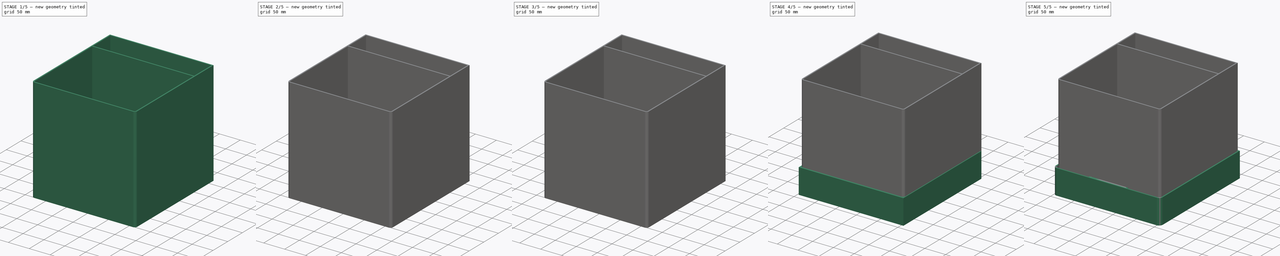
[diagram: build sequence overview — one tinted view per stage of 5, left to right]
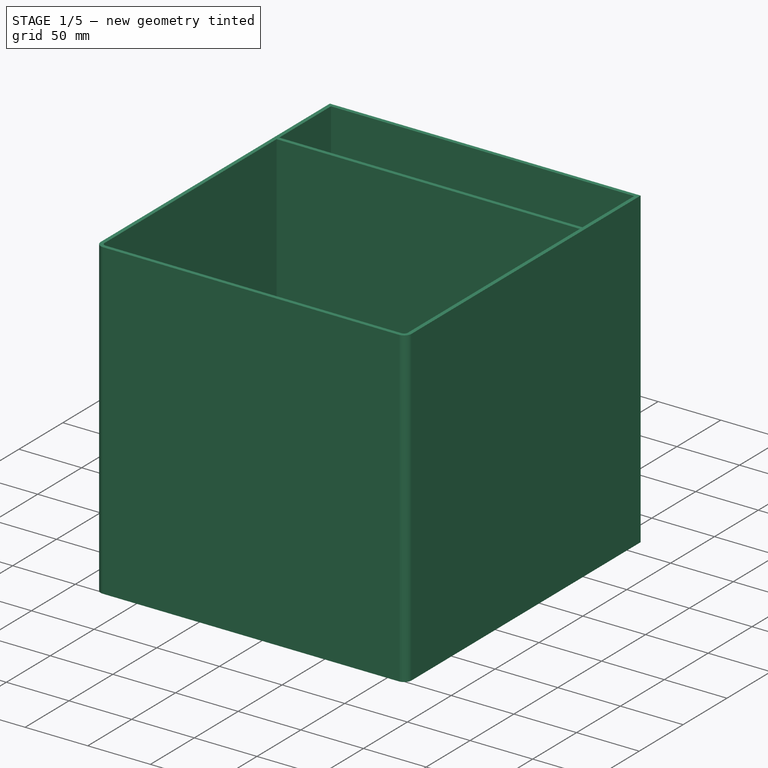
[diagram: stage 1 of 5 — iso view after this stage's code; geometry added in this stage tinted green]
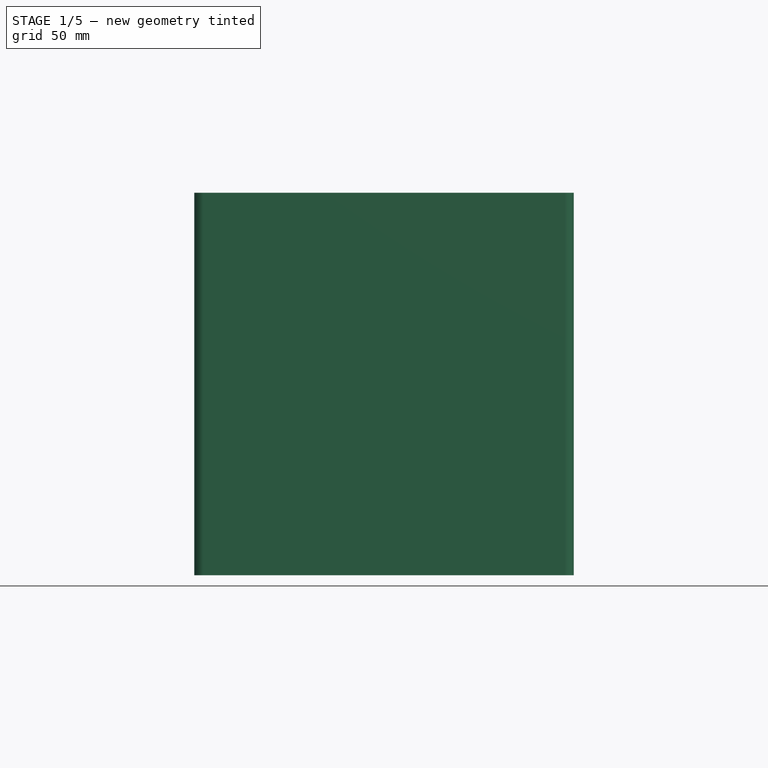
[diagram: stage 1 of 5 — front view after this stage's code; geometry added in this stage tinted green]
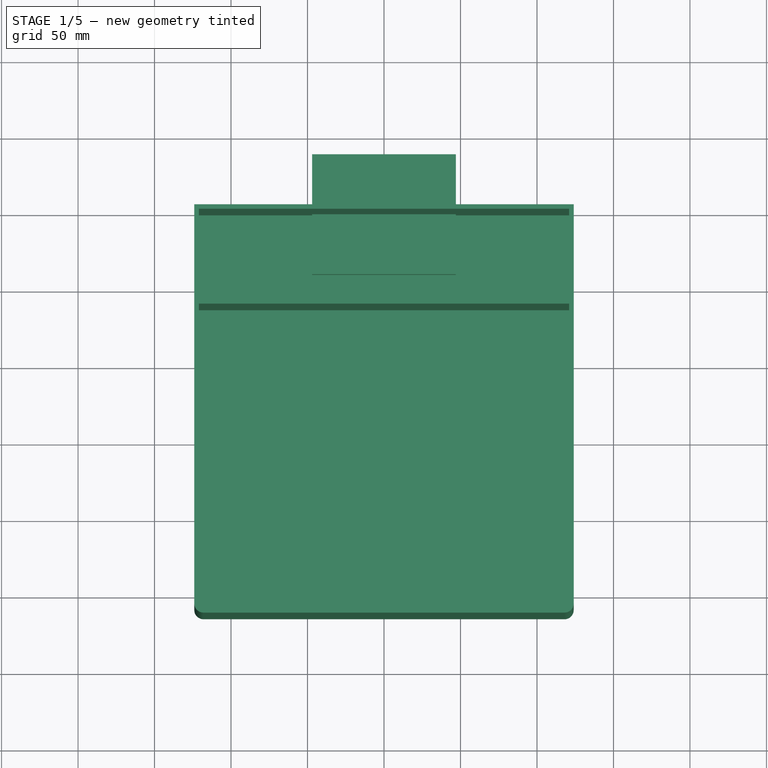
[diagram: stage 1 of 5 — top view after this stage's code; geometry added in this stage tinted green]
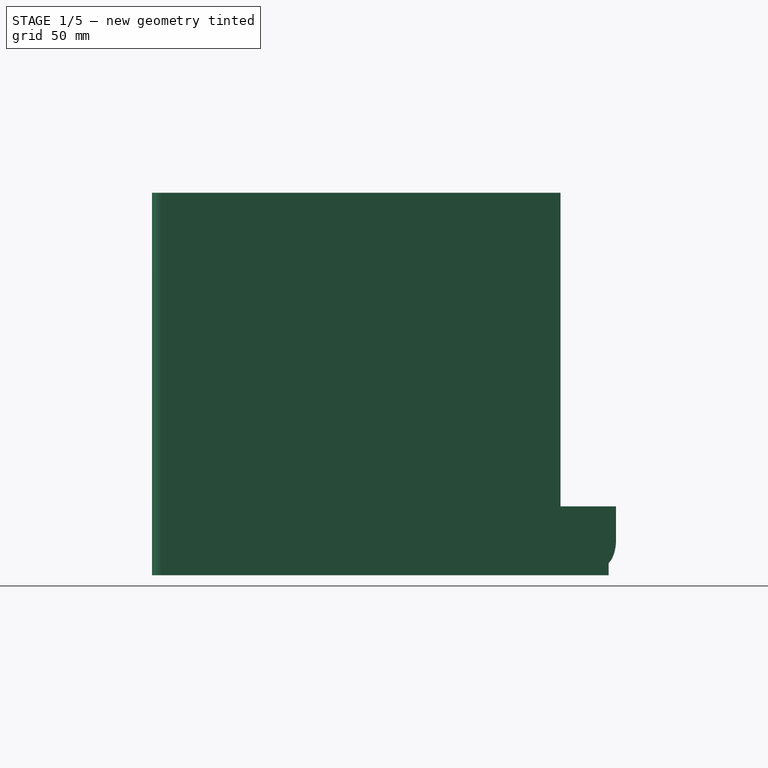
[diagram: stage 1 of 5 — right view after this stage's code; geometry added in this stage tinted green]
FCSTD DOCUMENT  (FreeCAD 0.17R13541 (Git))
Label: Tapa para nanoreef parte 3
License: CreativeCommons Attribution-ShareAlike
LicenseURL: http://creativecommons.org/licenses/by-sa/4.0/
objects: Sketcher::SketchObject×26, PartDesign::Pad×14, PartDesign::Pocket×12, PartDesign::Body×12, App::Part×12, App::DocumentObjectGroup×8, PartDesign::Fillet×8, PartDesign::Mirrored×6, Spreadsheet::Sheet×4, PartDesign::Plane×2, PartDesign::PolarPattern×2, PartDesign::Thickness×2, PartDesign::Draft×1
note: 111 computed .brp shape members not serialized (recipe doc carries the construction recipe); baked Part::Feature solids carry a one-line shape summary decoded from their .brp

FEATURE [Spreadsheet::Sheet] Spreadsheet006  label="Acuario"
  cells = A2=ACUARIO; A3=Espesor; B3(espesor)=3; A4=Frente; B4(frente)=248; A5=Profundidad; B5(profundidad)=264; A6=Alto; B6(alto)=250; A7=Radio; B7(radio)=6; A8=Filtro; B8(filtro)=59
FEATURE [Spreadsheet::Sheet] Spreadsheet007  label="IluminaciónFiltro"
  cells = A2=Heatsing; C2=Disipador; A3=Largo; B3(Largo)=; A4=Ancho; A5=Alto; A6=Barrenos
FEATURE [Spreadsheet::Sheet] Spreadsheet008  label="Tablero"
FEATURE [Spreadsheet::Sheet] Spreadsheet009  label="Tapa"
  cells = A2=TAPA PARA ACUARIO; A4=Frente; B4(frente)==Acuario.frente + 2 * Tapa.tolerancia; G4=Largo disipador; H4=98; A5=Profundidad; B5(profundidad)==Acuario.profundidad + 2 * Tapa.tolerancia; G5=Ancho disipador; H5=93; A6=Alto; B6(alto)=60; G7=Barrenos disipador; H7=62; A8=Ancho filtro; B8(anchofiltro)=59; A10=Tolerancia; B10(tolerancia)=2; C10=Diferencia entre tapa y acuario; A11=Espesor Acrilico; B11(espesoracrilico)=3
FEATURE [App::DocumentObjectGroup] Group007  label="Tablas"
  Group = -> [Spreadsheet006,Spreadsheet009,Spreadsheet007,Spreadsheet008]
FEATURE [App::DocumentObjectGroup] Group008  label="Tablero eléctrico"
FEATURE [App::DocumentObjectGroup] Group009  label="Soporte Acuario"
FEATURE [Sketcher::SketchObject] Sketch025
  MapMode = 5
  Placement = pos=(0,-39.25,0) rot=(1,0,0;1.5708rad)
  sketch-geometry (8):
    g0: LineSegment StartX=32 StartY=45 StartZ=0 EndX=50 EndY=45 EndZ=0
    g1: LineSegment StartX=50 StartY=45 StartZ=0 EndX=50 EndY=0 EndZ=0
    g2: LineSegment StartX=50 StartY=0 StartZ=0 EndX=32 EndY=0 EndZ=0
    g3: LineSegment StartX=32 StartY=0 StartZ=0 EndX=32 EndY=45 EndZ=0
    g4: LineSegment StartX=-32 StartY=0 StartZ=0 EndX=-50 EndY=0 EndZ=0
    g5: LineSegment StartX=-50 StartY=0 StartZ=0 EndX=-50 EndY=45 EndZ=0
    g6: LineSegment StartX=-50 StartY=45 StartZ=0 EndX=-32 EndY=45 EndZ=0
    g7: LineSegment StartX=-32 StartY=45 StartZ=0 EndX=-32 EndY=0 EndZ=0
  constraints (24):
    c: Coincident(g0,g1)
    c: Coincident(g1,g2)
    c: Coincident(g2,g3)
    c: Coincident(g3,g0)
    c: Horizontal(g0)
    c: Horizontal(g2)
    c: Vertical(g1)
    c: Vertical(g3)
    c: PointOnObject(g1,g-1)
    c: DistanceX(g-1,g2) = 32
    c: DistanceX(g2,g2) = 18
    c: DistanceY(g1,g1) = 45
    c: Coincident(g4,g5)
    c: Coincident(g5,g6)
    c: Coincident(g6,g7)
    c: Coincident(g7,g4)
    c: Horizontal(g4)
    c: Horizontal(g6)
    c: Vertical(g5)
    c: Vertical(g7)
    c: PointOnObject(g4,g-1)
    c: Equal(g3,g7)
    c: Equal(g6,g0)
    c: Symmetric(g4,g2,g-2)
FEATURE [Sketcher::SketchObject] Sketch027
  MapMode = 5
  Support = -> [XY_Plane017]
  sketch-geometry (6):
    g0: LineSegment StartX=-47 StartY=39.25 StartZ=0 EndX=47 EndY=39.25 EndZ=0
    g1: LineSegment StartX=47 StartY=39.25 StartZ=0 EndX=47 EndY=-39.25 EndZ=0
    g2: LineSegment StartX=47 StartY=-39.25 StartZ=0 EndX=-47 EndY=-39.25 EndZ=0
    g3: LineSegment StartX=-47 StartY=-39.25 StartZ=0 EndX=-47 EndY=39.25 EndZ=0
    g4: LineSegment [constr] StartX=-47 StartY=39.25 StartZ=0 EndX=0 EndY=0 EndZ=0
    g5: LineSegment [constr] StartX=0 StartY=0 StartZ=0 EndX=47 EndY=-39.25 EndZ=0
  constraints (16):
    c: Coincident(g0,g1)
    c: Coincident(g1,g2)
    c: Coincident(g2,g3)
    c: Coincident(g3,g0)
    c: Horizontal(g0)
    c: Horizontal(g2)
    c: Vertical(g1)
    c: Vertical(g3)
    c: Coincident(g0,g4)
    c: Coincident(g4,g-1)
    c: Coincident(g4,g5)
    c: Coincident(g5,g1)
    c: Equal(g5,g4)
    c: Parallel(g4,g5)
    c: DistanceY(g1,g1) = 78.5
    c: DistanceX(g0,g0) = 94
FEATURE [PartDesign::Plane] DatumPlane002
  AttachmentOffset = pos=(0,0,45) rot=(0,0,1;0rad)
  MapMode = 5
  Placement = pos=(0,0,45) rot=(0,0,1;0rad)
  Support = -> [XY_Plane019]
FEATURE [PartDesign::Plane] DatumPlane003  label="Plano ayuda"
  AttachmentOffset = pos=(0,0,55) rot=(0,0,1;0rad)
  MapMode = 5
  Placement = pos=(0,0,55) rot=(0,0,1;0rad)
  Support = -> [XY_Plane023]
  expr: AttachmentOffset.Base.z = Spreadsheet.altoacuario
FEATURE [Sketcher::SketchObject] Sketch022
  MapMode = 5
  Placement = pos=(0,0,55) rot=(0,0,1;0rad)
  Support = -> [DatumPlane003]
  expr: Constraints[9] = Tapa.anchofiltro + 2 * Tapa.espesoracrilico
  expr: Constraints[8] = Tapa.espesoracrilico
  expr: Constraints[10] = Tapa.frente + 2 * Tapa.espesoracrilico
  sketch-geometry (4):
    g0: LineSegment StartX=-129 StartY=3 StartZ=0 EndX=129 EndY=3 EndZ=0
    g1: LineSegment StartX=129 StartY=3 StartZ=0 EndX=129 EndY=-62 EndZ=0
    g2: LineSegment StartX=129 StartY=-62 StartZ=0 EndX=-129 EndY=-62 EndZ=0
    g3: LineSegment StartX=-129 StartY=-62 StartZ=0 EndX=-129 EndY=3 EndZ=0
  constraints (12):
    c: Coincident(g0,g1)
    c: Coincident(g1,g2)
    c: Coincident(g2,g3)
    c: Coincident(g3,g0)
    c: Horizontal(g0)
    c: Horizontal(g2)
    c: Vertical(g1)
    c: Vertical(g3)
    c: DistanceY(g-1,g0) = 3
    c: DistanceY(g3,g3) = 65
    c: DistanceX(g0,g0) = 258
    c: Symmetric(g0,g0,g-2)
FEATURE [PartDesign::Pad] Pad010
  Length = 45
  Length2 = 100
  Profile = -> Sketch027
  Refine = true
  Type = 0
FEATURE [PartDesign::Body] Body010
  Group = -> [DatumPlane003,Sketch022,Pad014,Sketch023,Pocket019]
  Origin = -> Origin021
  Placement = pos=(0,0,1) rot=(0,0,1;0rad)
  Tip = -> Pocket019
FEATURE [PartDesign::Body] Body013
  Group = -> [Sketch030,Pad019,Sketch029,Pocket014,PolarPattern002,Fillet011,Sketch032,Pocket018,Sketch033,Pocket017,PolarPattern003]
  Origin = -> Origin026
  Placement = pos=(0,-208,94) rot=(0,0,1;0rad)
  Tip = -> PolarPattern003
FEATURE [App::Part] Part008  label="Ventilador"
  Group = -> [Body013]
  License = CC BY 3.0
  LicenseURL = http://creativecommons.org/licenses/by/3.0/
  Origin = -> Origin022
  Placement = pos=(0,0,305) rot=(1,0,0;0.314159rad)
FEATURE [App::Part] Part013  label="04 Soporte led filtro"
  Group = -> [Body010]
  License = CC BY 3.0
  LicenseURL = http://creativecommons.org/licenses/by/3.0/
  Origin = -> Origin020
  Placement = pos=(0,3,249) rot=(0,0,1;0rad)
  expr: Placement.Base.y = Acuario.espesor
  expr: Placement.Base.z = Acuario.alto - 1
FEATURE [Sketcher::SketchObject] Sketch037
  ExternalGeometry = -> [Pad010]
  MapMode = 5
  Placement = pos=(47,0,0) rot=(0.57735,0.57735,0.57735;2.0944rad)
  Support = -> [Pad010]
  sketch-geometry (12):
    g0: LineSegment StartX=-39.25 StartY=45 StartZ=0 EndX=-39.25 EndY=21 EndZ=0
    g1: LineSegment StartX=-34.5 StartY=8 StartZ=0 EndX=-34.5 EndY=-2 EndZ=0
    g2: LineSegment StartX=-34.5 StartY=-2 StartZ=0 EndX=-44.25 EndY=-2 EndZ=0
    g3: LineSegment StartX=-44.25 StartY=-2 StartZ=0 EndX=-44.25 EndY=48 EndZ=0
    g4: LineSegment StartX=-44.25 StartY=48 StartZ=0 EndX=-39.25 EndY=48 EndZ=0
    g5: LineSegment StartX=-39.25 StartY=48 StartZ=0 EndX=-39.25 EndY=45 EndZ=0
    g6: Circle [constr] CenterX=-39.25 CenterY=21 CenterZ=0 NormalX=0 NormalY=0 NormalZ=1 AngleXU=0 Radius=3
    g7: Circle [constr] CenterX=-38.4927 CenterY=12.0467 CenterZ=0 NormalX=0 NormalY=0 NormalZ=1 AngleXU=0 Radius=3
    g8: Circle [constr] CenterX=-34.5 CenterY=8 CenterZ=0 NormalX=0 NormalY=0 NormalZ=1 AngleXU=0 Radius=3
    g9: BSplineCurve PolesCount=3 KnotsCount=2 Degree=2 IsPeriodic=0
    g10: GeomPoint [constr] X=-39.25 Y=21 Z=0
    g11: GeomPoint [constr] X=-34.5 Y=8 Z=0
  constraints (28):
    c: Coincident(g0,g-3)
    c: Vertical(g0)
    c: Vertical(g1)
    c: Coincident(g1,g2)
    c: Horizontal(g2)
    c: Coincident(g2,g3)
    c: Vertical(g3)
    c: Coincident(g3,g4)
    c: Horizontal(g4)
    c: Coincident(g4,g5)
    c: Coincident(g5,g0)
    c: Vertical(g5)
    c: Coincident(g6,g0)
    c: Radius(g6) = 3
    c: Equal(g6,g7)
    c: Equal(g6,g8)
    c: Coincident(g8,g1)
    c: InternalAlignment(g6,g9)
    c: InternalAlignment(g7,g9)
    c: InternalAlignment(g8,g9)
    c: InternalAlignment(g10,g9)
    c: InternalAlignment(g11,g9)
    c: DistanceX(g1,g-1) = 34.5
    c: DistanceY(g-1,g1) = 8
    c: DistanceY(g-1,g0) = 21
    c: DistanceY(g1,g1) = 10
    c: DistanceY(g3,g3) = 50
    c: DistanceX(g4,g4) = 5
FEATURE [PartDesign::Pocket] Pocket013
  BaseFeature = -> Pad010
  Length = 5
  Length2 = 100
  Profile = -> Sketch037
  Refine = true
  Type = 1
FEATURE [PartDesign::Mirrored] Mirrored006
  BaseFeature = -> Pocket013
  MirrorPlane = -> XZ_Plane018
  Originals = -> [Pocket013]
  Refine = true
FEATURE [PartDesign::Body] Body009
  Group = -> [Sketch043,Pad015,Sketch024,Pocket016,Fillet007]
  Origin = -> Origin028
  Placement = pos=(0,0,1) rot=(0,0,1;0rad)
  Tip = -> Fillet007
FEATURE [App::Part] Part011  label="03 Soporte led"
  Group = -> [Body009]
  License = CC BY 3.0
  LicenseURL = http://creativecommons.org/licenses/by/3.0/
  Origin = -> Origin029
  Placement = pos=(0,3,247) rot=(0,0,1;0rad)
  expr: Placement.Base.y = Acuario.espesor
  expr: Placement.Base.z = Acuario.alto - 3
FEATURE [App::DocumentObjectGroup] Group010  label="Tapa de Acrilico"
  Group = -> [Part010,Part009,Part012,Part011,Part013]
FEATURE [App::DocumentObjectGroup] Group011  label="Iluminación Acuario"
  Group = -> [Part014,Part008,Part015]
FEATURE [App::DocumentObjectGroup] Group013  label="Iluminación Filtro"
FEATURE [App::DocumentObjectGroup] Group  label="Planos"
FEATURE [Sketcher::SketchObject] Sketch044
  MapMode = 5
  Support = -> [XY_Plane033]
  expr: Constraints[11] = Acuario.profundidad
  expr: Constraints[10] = Acuario.frente
  sketch-geometry (4):
    g0: LineSegment StartX=-124 StartY=0 StartZ=0 EndX=124 EndY=0 EndZ=0
    g1: LineSegment StartX=124 StartY=0 StartZ=0 EndX=124 EndY=-264 EndZ=0
    g2: LineSegment StartX=124 StartY=-264 StartZ=0 EndX=-124 EndY=-264 EndZ=0
    g3: LineSegment StartX=-124 StartY=-264 StartZ=0 EndX=-124 EndY=0 EndZ=0
  constraints (12):
    c: Coincident(g0,g1)
    c: Coincident(g1,g2)
    c: Coincident(g2,g3)
    c: Coincident(g3,g0)
    c: Horizontal(g0)
    c: Horizontal(g2)
    c: Vertical(g1)
    c: Vertical(g3)
    c: PointOnObject(g0,g-1)
    c: Symmetric(g0,g0,g-1)
    c: DistanceX(g0,g0) = 248
    c: DistanceY(g3,g3) = 264
FEATURE [PartDesign::Pad] Pad020
  Length = 250
  Length2 = 100
  Profile = -> Sketch044
  Refine = true
  Type = 0
  expr: Length = Acuario.alto
FEATURE [PartDesign::Fillet] Fillet014
  Base = -> Pad020 [Edge5,Edge8]
  BaseFeature = -> Pad020
  Radius = 6
  expr: Radius = Acuario.radio
FEATURE [PartDesign::Thickness] Thickness002  label="Grosor Acrilico"
  Base = -> Fillet014 [Face5,Face2,Face4]
  BaseFeature = -> Fillet014
  Join = 0
  Mode = 0
  Reversed = true
  Value = 3
FEATURE [PartDesign::Body] Body016
  Group = -> [Sketch044,Pad020,Fillet014,Thickness002]
  Origin = -> Origin032
  Tip = -> Thickness002
FEATURE [App::Part] Part016  label="Cuerpo Principal"
  Group = -> [Body016]
  License = CC BY 3.0
  LicenseURL = http://creativecommons.org/licenses/by/3.0/
  Origin = -> Origin033
  Placement = pos=(0,0,3) rot=(0,0,1;0rad)
  expr: Placement.Base.z = Acuario.espesor
FEATURE [Sketcher::SketchObject] Sketch045
  MapMode = 5
  Placement = pos=(0,0,0) rot=(0.57735,0.57735,0.57735;2.0944rad)
  Support = -> [YZ_Plane035]
  expr: Constraints[9] = Acuario.espesor
  expr: Constraints[10] = Acuario.alto
  sketch-geometry (4):
    g0: LineSegment StartX=0 StartY=0 StartZ=0 EndX=3 EndY=0 EndZ=0
    g1: LineSegment StartX=3 StartY=0 StartZ=0 EndX=3 EndY=250 EndZ=0
    g2: LineSegment StartX=3 StartY=250 StartZ=0 EndX=0 EndY=250 EndZ=0
    g3: LineSegment StartX=0 StartY=250 StartZ=0 EndX=0 EndY=0 EndZ=0
  constraints (11):
    c: Coincident(g0,g1)
    c: Coincident(g1,g2)
    c: Coincident(g2,g3)
    c: Coincident(g3,g0)
    c: Horizontal(g0)
    c: Horizontal(g2)
    c: Vertical(g1)
    c: Vertical(g3)
    c: Coincident(g0,g-1)
    c: DistanceX(g2,g2) = 3
    c: DistanceY(g1,g1) = 250
FEATURE [PartDesign::Pad] Pad021
  Length = 248
  Length2 = 100
  Midplane = true
  Placement = pos=(0,0,0) rot=(0.57735,0.57735,0.57735;2.0944rad)
  Profile = -> Sketch045
  Refine = true
  Type = 0
  expr: Length = Acuario.frente
FEATURE [PartDesign::Body] Body017
  Group = -> [Sketch045,Pad021]
  Origin = -> Origin035
  Tip = -> Pad021
FEATURE [App::Part] Part017  label="Tapa trasera"
  Group = -> [Body017]
  License = CC BY 3.0
  LicenseURL = http://creativecommons.org/licenses/by/3.0/
  Origin = -> Origin034
  Placement = pos=(0,0,3) rot=(0,0,1;0rad)
  expr: Placement.Base.z = Acuario.espesor
FEATURE [Sketcher::SketchObject] Sketch046
  MapMode = 5
  Placement = pos=(0,0,0) rot=(0.57735,0.57735,0.57735;2.0944rad)
  Support = -> [YZ_Plane037]
  expr: Constraints[11] = Acuario.filtro
  expr: Constraints[10] = Acuario.alto
  expr: Constraints[9] = Acuario.espesor
  sketch-geometry (4):
    g0: LineSegment StartX=-59 StartY=0 StartZ=0 EndX=-62 EndY=0 EndZ=0
    g1: LineSegment StartX=-62 StartY=0 StartZ=0 EndX=-62 EndY=250 EndZ=0
    g2: LineSegment StartX=-62 StartY=250 StartZ=0 EndX=-59 EndY=250 EndZ=0
    g3: LineSegment StartX=-59 StartY=250 StartZ=0 EndX=-59 EndY=0 EndZ=0
  constraints (12):
    c: Coincident(g0,g1)
    c: Coincident(g1,g2)
    c: Coincident(g2,g3)
    c: Coincident(g3,g0)
    c: Horizontal(g0)
    c: Horizontal(g2)
    c: Vertical(g1)
    c: Vertical(g3)
    c: PointOnObject(g0,g-1)
    c: DistanceX(g2,g2) = 3
    c: DistanceY(g3,g3) = 250
    c: DistanceX(g0,g-1) = 59
FEATURE [PartDesign::Pad] Pad022
  Length = 242
  Length2 = 100
  Midplane = true
  Placement = pos=(0,0,0) rot=(0.57735,0.57735,0.57735;2.0944rad)
  Profile = -> Sketch046
  Refine = true
  Type = 0
  expr: Length = Acuario.frente - 2 * Acuario.espesor
FEATURE [PartDesign::Body] Body018
  Group = -> [Sketch046,Pad022]
  Origin = -> Origin037
  Tip = -> Pad022
FEATURE [App::Part] Part018  label="Tapa filtro"
  Group = -> [Body018]
  License = CC BY 3.0
  LicenseURL = http://creativecommons.org/licenses/by/3.0/
  Origin = -> Origin036
  Placement = pos=(0,0,3) rot=(0,0,1;0rad)
  expr: Placement.Base.z = Acuario.espesor
FEATURE [Sketcher::SketchObject] Sketch
  MapMode = 5
  Support = -> [XY_Plane038]
  expr: Constraints[12] = Acuario.frente
  expr: Constraints[11] = Acuario.profundidad
  expr: Constraints[10] = Acuario.radio
  sketch-geometry (6):
    g0: LineSegment StartX=-124 StartY=0 StartZ=0 EndX=124 EndY=0 EndZ=0
    g1: LineSegment StartX=124 StartY=0 StartZ=0 EndX=124 EndY=-258 EndZ=0
    g2: LineSegment StartX=118 StartY=-264 StartZ=0 EndX=-118 EndY=-264 EndZ=0
    g3: LineSegment StartX=-124 StartY=-258 StartZ=0 EndX=-124 EndY=0 EndZ=0
    g4: ArcOfCircle CenterX=118 CenterY=-258 CenterZ=0 NormalX=0 NormalY=0 NormalZ=1 AngleXU=0 Radius=6 StartAngle=4.71239 EndAngle=6.28319
    g5: ArcOfCircle CenterX=-118 CenterY=-258 CenterZ=0 NormalX=0 NormalY=0 NormalZ=1 AngleXU=0 Radius=6 StartAngle=3.14159 EndAngle=4.71239
  constraints (15):
    c: Coincident(g0,g1)
    c: Coincident(g3,g0)
    c: Horizontal(g2)
    c: Vertical(g1)
    c: Vertical(g3)
    c: PointOnObject(g0,g-1)
    c: Tangent(g1,g4) = 1.5708
    c: Tangent(g2,g4) = 1.5708
    c: Tangent(g2,g5) = 1.5708
    c: Tangent(g3,g5) = 1.5708
    c: Radius(g5) = 6
    c: DistanceY(g2,g0) = 264
    c: DistanceX(g3,g1) = 248
    c: Equal(g5,g4)
    c: Symmetric(g0,g0,g-2)
FEATURE [PartDesign::Pad] Pad
  Length = 3
  Length2 = 100
  Profile = -> Sketch
  Refine = true
  Type = 0
  expr: Length = Acuario.espesor
FEATURE [PartDesign::Body] Body
  Group = -> [Sketch,Pad]
  Origin = -> Origin038
  Tip = -> Pad
FEATURE [App::Part] Part  label="Base"
  Group = -> [Body]
  License = CC BY 3.0
  LicenseURL = http://creativecommons.org/licenses/by/3.0/
  Origin = -> Origin
FEATURE [App::DocumentObjectGroup] Group012  label="Acuario Nano"
  Group = -> [Part016,Part017,Part018,Part]
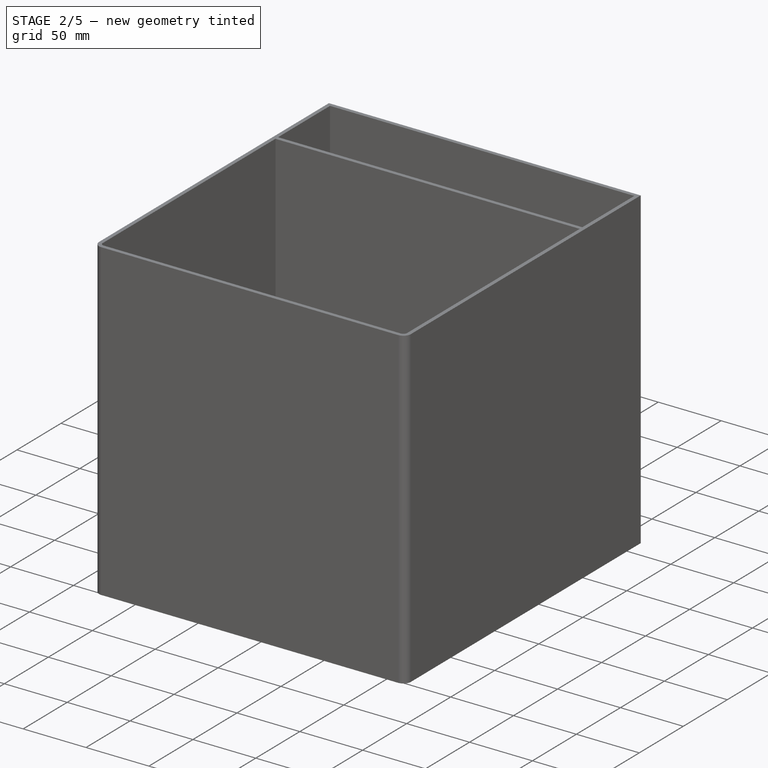
[diagram: stage 2 of 5 — iso view after this stage's code; geometry added in this stage tinted green]
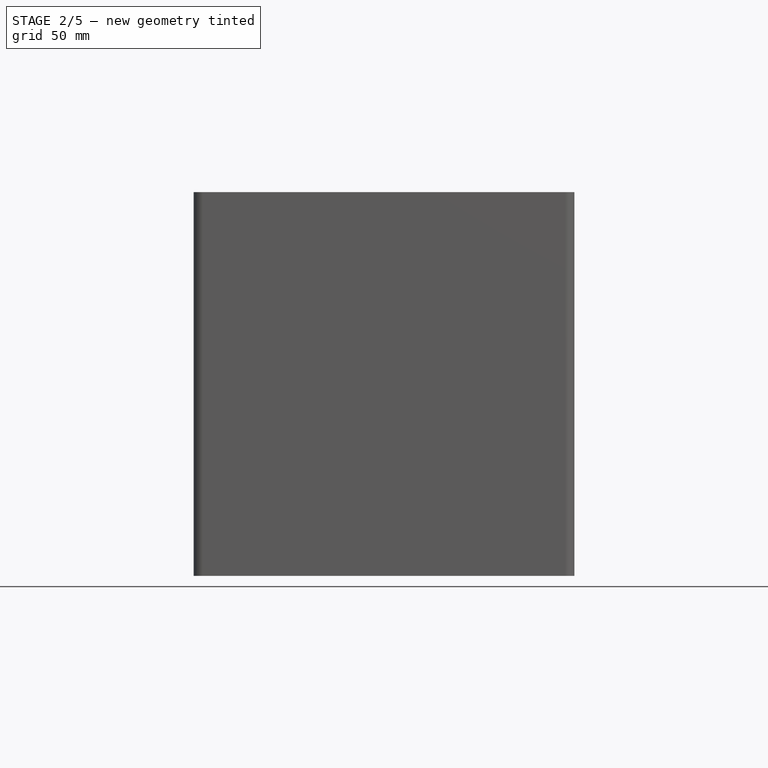
[diagram: stage 2 of 5 — front view after this stage's code; geometry added in this stage tinted green]
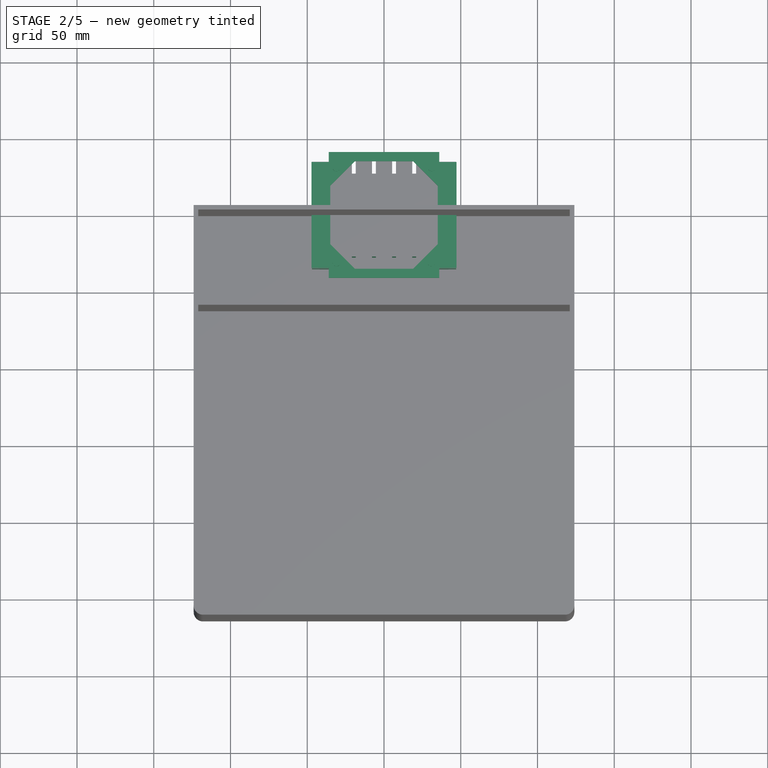
[diagram: stage 2 of 5 — top view after this stage's code; geometry added in this stage tinted green]
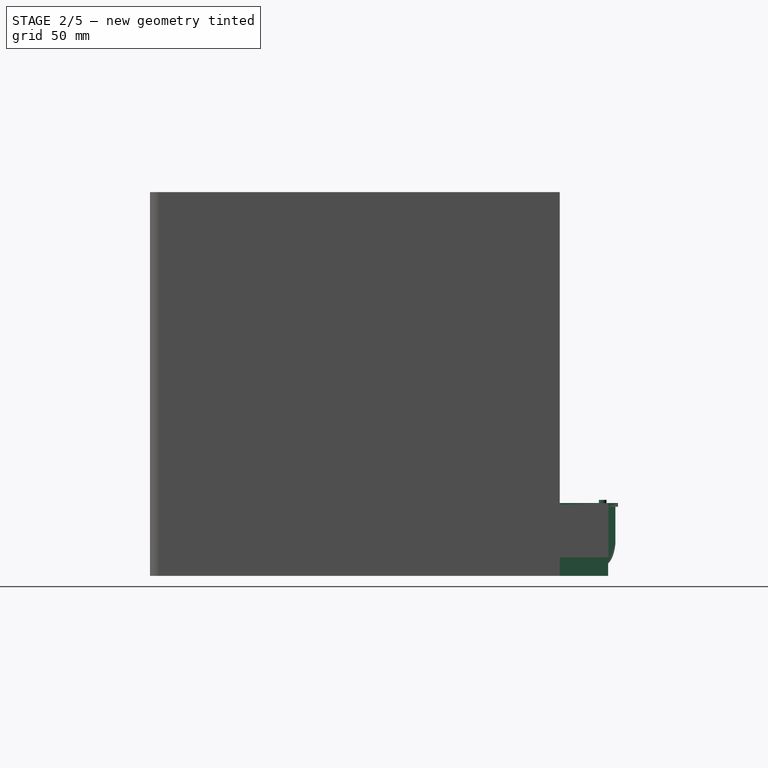
[diagram: stage 2 of 5 — right view after this stage's code; geometry added in this stage tinted green]
FEATURE [Sketcher::SketchObject] Sketch034
  MapMode = 5
  Placement = pos=(47,0,0) rot=(0.57735,0.57735,0.57735;2.0944rad)
  Support = -> [Mirrored006]
  sketch-geometry (4):
    g0: LineSegment StartX=-40 StartY=12 StartZ=0 EndX=40 EndY=12 EndZ=0
    g1: LineSegment StartX=40 StartY=12 StartZ=0 EndX=40 EndY=0 EndZ=0
    g2: LineSegment StartX=40 StartY=0 StartZ=0 EndX=-40 EndY=0 EndZ=0
    g3: LineSegment StartX=-40 StartY=0 StartZ=0 EndX=-40 EndY=12 EndZ=0
  constraints (12):
    c: Coincident(g0,g1)
    c: Coincident(g1,g2)
    c: Coincident(g2,g3)
    c: Coincident(g3,g0)
    c: Horizontal(g0)
    c: Horizontal(g2)
    c: Vertical(g1)
    c: Vertical(g3)
    c: PointOnObject(g1,g-1)
    c: Symmetric(g1,g2,g-2)
    c: DistanceX(g2,g2) = 80
    c: DistanceY(g1,g1) = 12
FEATURE [PartDesign::Pocket] Pocket012
  BaseFeature = -> Mirrored006
  Length = 5
  Length2 = 100
  Profile = -> Sketch034
  Refine = true
  Type = 0
FEATURE [PartDesign::Pocket] Pocket023
  BaseFeature = -> Pocket012
  Length = 4.5
  Length2 = 100
  Profile = -> Sketch025
  Refine = true
  Type = 0
FEATURE [PartDesign::Mirrored] Mirrored009
  BaseFeature = -> Pocket023
  MirrorPlane = -> YZ_Plane020
  Originals = -> [Pocket012]
  Refine = true
FEATURE [PartDesign::Mirrored] Mirrored008
  BaseFeature = -> Mirrored009
  MirrorPlane = -> XZ_Plane018
  Originals = -> [Pocket023]
  Refine = true
FEATURE [Sketcher::SketchObject] Sketch026
  MapMode = 5
  Placement = pos=(0,0,0) rot=(1,0,0;3.14159rad)
  Support = -> [Mirrored008]
  sketch-geometry (16):
    g0: LineSegment StartX=-20.9 StartY=42 StartZ=0 EndX=-18.4 EndY=42 EndZ=0
    g1: LineSegment StartX=-18.4 StartY=42 StartZ=0 EndX=-18.4 EndY=27 EndZ=0
    g2: LineSegment StartX=-18.4 StartY=27 StartZ=0 EndX=-20.9 EndY=27 EndZ=0
    g3: LineSegment StartX=-20.9 StartY=27 StartZ=0 EndX=-20.9 EndY=42 EndZ=0
    g4: LineSegment StartX=-7.8 StartY=42 StartZ=0 EndX=-5.3 EndY=42 EndZ=0
    g5: LineSegment StartX=-5.3 StartY=42 StartZ=0 EndX=-5.3 EndY=27 EndZ=0
    g6: LineSegment StartX=-5.3 StartY=27 StartZ=0 EndX=-7.8 EndY=27 EndZ=0
    g7: LineSegment StartX=-7.8 StartY=27 StartZ=0 EndX=-7.8 EndY=42 EndZ=0
    g8: LineSegment StartX=5.3 StartY=42 StartZ=0 EndX=7.8 EndY=42 EndZ=0
    g9: LineSegment StartX=7.8 StartY=42 StartZ=0 EndX=7.8 EndY=27 EndZ=0
    g10: LineSegment StartX=7.8 StartY=27 StartZ=0 EndX=5.3 EndY=27 EndZ=0
    g11: LineSegment StartX=5.3 StartY=27 StartZ=0 EndX=5.3 EndY=42 EndZ=0
    g12: LineSegment StartX=18.4 StartY=42 StartZ=0 EndX=20.9 EndY=42 EndZ=0
    g13: LineSegment StartX=20.9 StartY=42 StartZ=0 EndX=20.9 EndY=27 EndZ=0
    g14: LineSegment StartX=20.9 StartY=27 StartZ=0 EndX=18.4 EndY=27 EndZ=0
    g15: LineSegment StartX=18.4 StartY=27 StartZ=0 EndX=18.4 EndY=42 EndZ=0
  constraints (46):
    c: Coincident(g0,g1)
    c: Coincident(g1,g2)
    c: Coincident(g2,g3)
    c: Coincident(g3,g0)
    c: Horizontal(g0)
    c: Horizontal(g2)
    c: Vertical(g1)
    c: Vertical(g3)
    c: Coincident(g4,g5)
    c: Coincident(g5,g6)
    c: Coincident(g6,g7)
    c: Coincident(g7,g4)
    c: Horizontal(g4)
    c: Horizontal(g6)
    c: Vertical(g5)
    c: Vertical(g7)
    c: Coincident(g8,g9)
    c: Coincident(g9,g10)
    c: Coincident(g10,g11)
    c: Coincident(g11,g8)
    c: Horizontal(g8)
    c: Horizontal(g10)
    c: Vertical(g9)
    c: Vertical(g11)
    c: Coincident(g12,g13)
    c: Coincident(g13,g14)
    c: Coincident(g14,g15)
    c: Coincident(g15,g12)
    c: Horizontal(g12)
    c: Horizontal(g14)
    c: Vertical(g13)
    c: Vertical(g15)
    c: Symmetric(g8,g4,g-2)
    c: Equal(g8,g4)
    c: Symmetric(g12,g0,g-2)
    c: Equal(g12,g8)
    c: Equal(g0,g4)
    c: Equal(g3,g7)
    c: Equal(g7,g11)
    c: Equal(g11,g15)
    c: Horizontal(g12,g8)
    c: DistanceY(g-1,g5) = 27
    c: DistanceX(g0,g0) = 2.5
    c: DistanceX(g0,g4) = 10.6
    c: DistanceX(g4,g8) = 10.6
    c: DistanceY(g3,g3) = 15
FEATURE [PartDesign::Pocket] Pocket022
  BaseFeature = -> Mirrored008
  Length = 5
  Length2 = 100
  Profile = -> Sketch026
  Refine = true
  Type = 1
FEATURE [PartDesign::Mirrored] Mirrored011
  BaseFeature = -> Pocket022
  MirrorPlane = -> XZ_Plane018
  Originals = -> [Pocket022]
  Refine = true
FEATURE [PartDesign::Body] Body014
  Group = -> [Sketch027,Pad010,Sketch037,Pocket013,Mirrored006,Sketch034,Pocket012,Sketch025,Pocket023,Mirrored009,Mirrored008,Sketch026,Pocket022,Mirrored011,Sketch038,Pocket020,Mirrored007,Fillet010,Fillet009]
  Origin = -> Origin023
  Placement = pos=(0,-190,85) rot=(0,0,1;0rad)
  Tip = -> Fillet009
FEATURE [App::Part] Part014  label="Disipador"
  Group = -> [Body014]
  License = CC BY 3.0
  LicenseURL = http://creativecommons.org/licenses/by/3.0/
  Origin = -> Origin024
  Placement = pos=(0,0,250) rot=(1,0,0;0.314159rad)
FEATURE [Sketcher::SketchObject] Sketch039
  MapMode = 5
  Placement = pos=(0,0,45) rot=(0,0,1;0rad)
  Support = -> [DatumPlane002]
  sketch-geometry (20):
    g0: LineSegment StartX=-47.25 StartY=34.5 StartZ=0 EndX=-36 EndY=34.5 EndZ=0
    g1: LineSegment StartX=47.25 StartY=34.5 StartZ=0 EndX=47.25 EndY=-34.5 EndZ=0
    g2: LineSegment StartX=47.25 StartY=-34.5 StartZ=0 EndX=36 EndY=-34.5 EndZ=0
    g3: LineSegment StartX=-47.25 StartY=-34.5 StartZ=0 EndX=-47.25 EndY=34.5 EndZ=0
    g4: LineSegment StartX=-36 StartY=41 StartZ=0 EndX=36 EndY=41 EndZ=0
    g5: LineSegment StartX=36 StartY=41 StartZ=0 EndX=36 EndY=34.5 EndZ=0
    g6: LineSegment StartX=36 StartY=-41 StartZ=0 EndX=-36 EndY=-41 EndZ=0
    g7: LineSegment StartX=-36 StartY=-41 StartZ=0 EndX=-36 EndY=-34.5 EndZ=0
    g8: LineSegment StartX=36 StartY=34.5 StartZ=0 EndX=47.25 EndY=34.5 EndZ=0
    g9: LineSegment StartX=-36 StartY=34.5 StartZ=0 EndX=-36 EndY=41 EndZ=0
    g10: LineSegment StartX=36 StartY=-34.5 StartZ=0 EndX=36 EndY=-41 EndZ=0
    g11: LineSegment StartX=-36 StartY=-34.5 StartZ=0 EndX=-47.25 EndY=-34.5 EndZ=0
    g12: LineSegment StartX=-19 StartY=35 StartZ=0 EndX=19 EndY=35 EndZ=0
    g13: LineSegment StartX=35 StartY=19 StartZ=0 EndX=35 EndY=-19 EndZ=0
    g14: LineSegment StartX=19 StartY=-35 StartZ=0 EndX=-19 EndY=-35 EndZ=0
    g15: LineSegment StartX=-35 StartY=-19 StartZ=0 EndX=-35 EndY=19 EndZ=0
    g16: LineSegment StartX=-35 StartY=19 StartZ=0 EndX=-19 EndY=35 EndZ=0
    g17: LineSegment StartX=19 StartY=35 StartZ=0 EndX=35 EndY=19 EndZ=0
    g18: LineSegment StartX=35 StartY=-19 StartZ=0 EndX=19 EndY=-35 EndZ=0
    g19: LineSegment StartX=-35 StartY=-19 StartZ=0 EndX=-19 EndY=-35 EndZ=0
  constraints (53):
    c: Coincident(g8,g1)
    c: Coincident(g1,g2)
    c: Coincident(g11,g3)
    c: Coincident(g3,g0)
    c: Horizontal(g0)
    c: Horizontal(g2)
    c: Vertical(g1)
    c: Vertical(g3)
    c: Symmetric(g0,g11,g-1)
    c: Symmetric(g8,g0,g-2)
    c: Coincident(g4,g5)
    c: Coincident(g10,g6)
    c: Coincident(g6,g7)
    c: Coincident(g9,g4)
    c: Horizontal(g4)
    c: Horizontal(g6)
    c: Vertical(g5)
    c: Vertical(g7)
    c: Tangent(g0,g8)
    c: Coincident(g9,g0)
    c: Tangent(g7,g9)
    c: Coincident(g5,g8)
    c: Tangent(g5,g10)
    c: Coincident(g2,g10)
    c: Coincident(g11,g7)
    c: Tangent(g2,g11)
    c: Equal(g8,g0)
    c: Equal(g9,g7)
    c: DistanceX(g6,g6) = 72
    c: DistanceX(g3,g1) = 94.5
    c: DistanceY(g1,g1) = 69
    c: DistanceY(g6,g4) = 82
    c: Horizontal(g14)
    c: Vertical(g13)
    c: Vertical(g15)
    c: Coincident(g12,g16)
    c: Coincident(g15,g16)
    c: Coincident(g15,g19)
    c: Coincident(g14,g19)
    c: Coincident(g14,g18)
    c: Coincident(g13,g18)
    c: Coincident(g13,g17)
    c: Coincident(g12,g17)
    c: Symmetric(g12,g12,g-2)
    c: Symmetric(g12,g14,g-1)
    c: Symmetric(g15,g15,g-1)
    c: Symmetric(g12,g14,g-1)
    c: Symmetric(g13,g13,g-1)
    c: Symmetric(g13,g15,g-2)
    c: Angle(g16,g12) = 2.35619
    c: DistanceX(g15,g13) = 70
    c: Equal(g12,g13)
    c: DistanceX(g12,g12) = 38
FEATURE [PartDesign::Pad] Pad018
  Length = 2.5
  Length2 = 100
  Placement = pos=(0,0,45) rot=(0,0,1;0rad)
  Profile = -> Sketch039
  Refine = true
  Type = 0
FEATURE [Sketcher::SketchObject] Sketch035
  MapMode = 5
  Placement = pos=(0,0,47.5) rot=(0,0,1;0rad)
  Support = -> [Pad018]
  sketch-geometry (4):
    g0: LineSegment StartX=-35.5 StartY=35.5 StartZ=0 EndX=35.5 EndY=35.5 EndZ=0
    g1: LineSegment StartX=35.5 StartY=35.5 StartZ=0 EndX=35.5 EndY=-35.5 EndZ=0
    g2: LineSegment StartX=35.5 StartY=-35.5 StartZ=0 EndX=-35.5 EndY=-35.5 EndZ=0
    g3: LineSegment StartX=-35.5 StartY=-35.5 StartZ=0 EndX=-35.5 EndY=35.5 EndZ=0
  constraints (12):
    c: Coincident(g0,g1)
    c: Coincident(g1,g2)
    c: Coincident(g2,g3)
    c: Coincident(g3,g0)
    c: Horizontal(g0)
    c: Horizontal(g2)
    c: Vertical(g1)
    c: Vertical(g3)
    c: Symmetric(g0,g0,g-2)
    c: Symmetric(g0,g2,g-1)
    c: DistanceY(g1,g1) = 71
    c: Equal(g0,g1)
FEATURE [PartDesign::Pocket] Pocket015
  BaseFeature = -> Pad018
  Length = 1
  Length2 = 100
  Placement = pos=(0,0,45) rot=(0,0,1;0rad)
  Profile = -> Sketch035
  Refine = true
  Type = 0
FEATURE [Sketcher::SketchObject] Sketch036
  MapMode = 5
  Placement = pos=(0,0,46.5) rot=(0,0,1;0rad)
  Support = -> [Pocket015]
  sketch-geometry (8):
    g0: LineSegment [constr] StartX=-31 StartY=31 StartZ=0 EndX=31 EndY=31 EndZ=0
    g1: LineSegment [constr] StartX=31 StartY=31 StartZ=0 EndX=31 EndY=-31 EndZ=0
    g2: LineSegment [constr] StartX=31 StartY=-31 StartZ=0 EndX=-31 EndY=-31 EndZ=0
    g3: LineSegment [constr] StartX=-31 StartY=-31 StartZ=0 EndX=-31 EndY=31 EndZ=0
    g4: Circle CenterX=-31 CenterY=31 CenterZ=0 NormalX=0 NormalY=0 NormalZ=1 AngleXU=0 Radius=2.5
    g5: Circle CenterX=31 CenterY=31 CenterZ=0 NormalX=0 NormalY=0 NormalZ=1 AngleXU=0 Radius=2.5
    g6: Circle CenterX=31 CenterY=-31 CenterZ=0 NormalX=0 NormalY=0 NormalZ=1 AngleXU=0 Radius=2.5
    g7: Circle CenterX=-31 CenterY=-31 CenterZ=0 NormalX=0 NormalY=0 NormalZ=1 AngleXU=0 Radius=2.5
  constraints (20):
    c: Coincident(g0,g1)
    c: Coincident(g1,g2)
    c: Coincident(g2,g3)
    c: Coincident(g3,g0)
    c: Horizontal(g0)
    c: Horizontal(g2)
    c: Vertical(g1)
    c: Vertical(g3)
    c: Symmetric(g0,g0,g-2)
    c: Symmetric(g0,g2,g-1)
    c: Coincident(g4,g0)
    c: Coincident(g5,g0)
    c: Coincident(g6,g1)
    c: Coincident(g7,g2)
    c: Equal(g4,g5)
    c: Equal(g5,g6)
    c: Equal(g6,g7)
    c: Radius(g4) = 2.5
    c: DistanceX(g0,g0) = 62
    c: Equal(g3,g0)
FEATURE [PartDesign::Pad] Pad017
  BaseFeature = -> Pocket015
  Length = 3
  Length2 = 100
  Placement = pos=(0,0,45) rot=(0,0,1;0rad)
  Profile = -> Sketch036
  Refine = true
  Type = 0
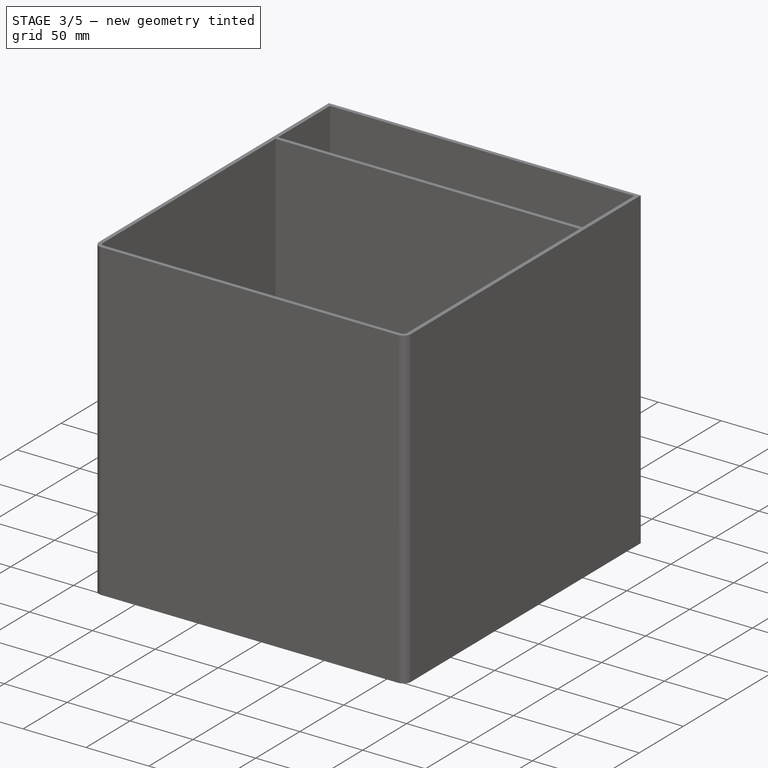
[diagram: stage 3 of 5 — iso view after this stage's code; geometry added in this stage tinted green]
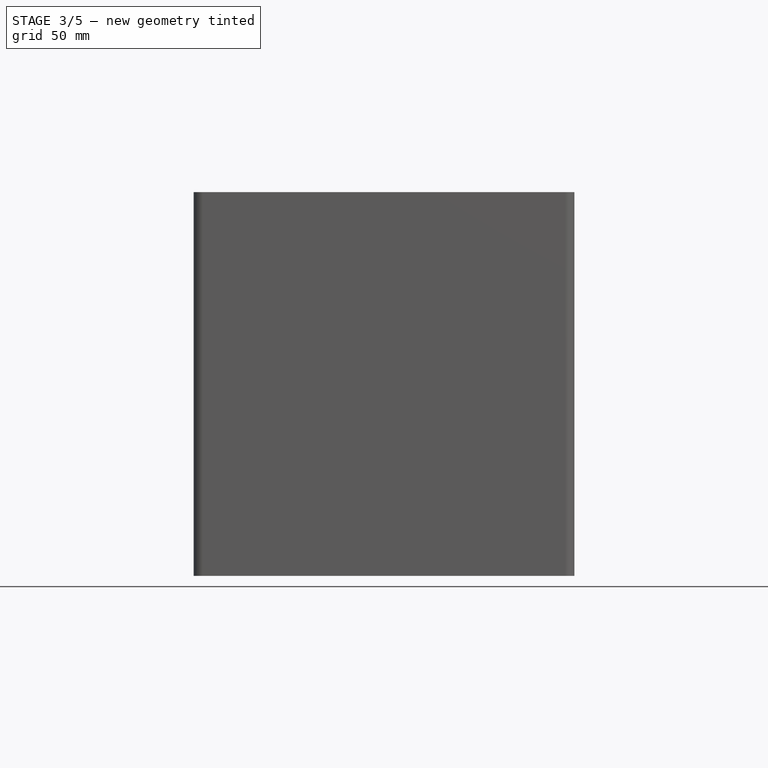
[diagram: stage 3 of 5 — front view after this stage's code; geometry added in this stage tinted green]
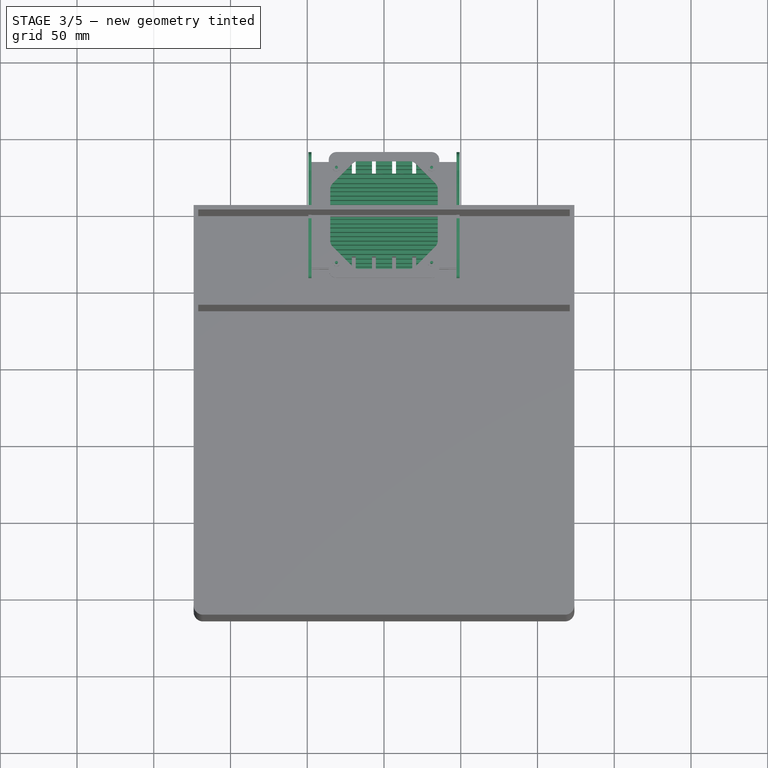
[diagram: stage 3 of 5 — top view after this stage's code; geometry added in this stage tinted green]
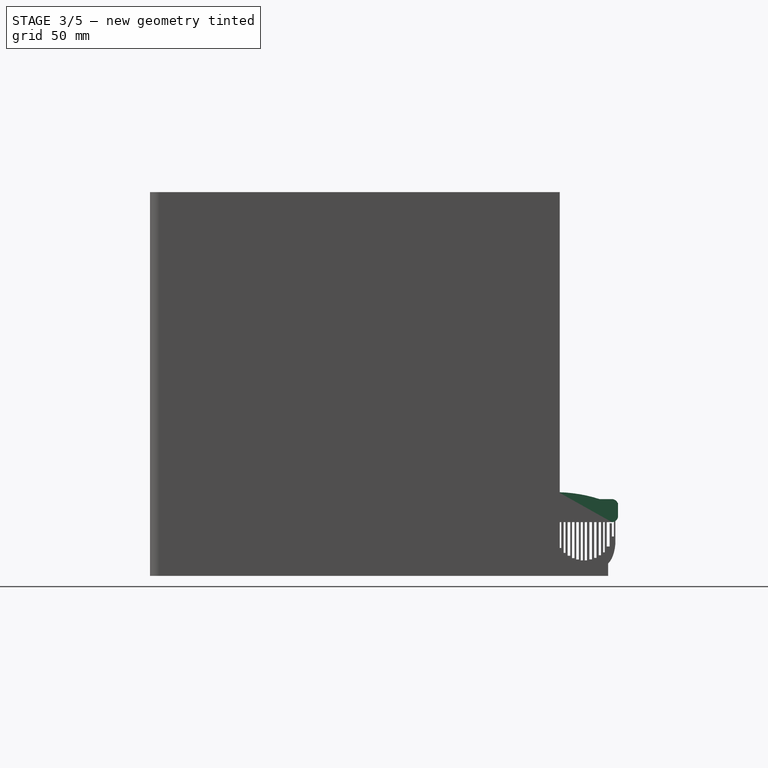
[diagram: stage 3 of 5 — right view after this stage's code; geometry added in this stage tinted green]
FEATURE [Sketcher::SketchObject] Sketch038
  ExternalGeometry = -> [Mirrored011]
  MapMode = 5
  Placement = pos=(47,0,0) rot=(0.57735,0.57735,0.57735;2.0944rad)
  Support = -> [Mirrored011]
  sketch-geometry (66):
    g0: ArcOfCircle [constr] CenterX=18.735 CenterY=30 CenterZ=0 NormalX=0 NormalY=0 NormalZ=1 AngleXU=0 Radius=20 StartAngle=3.49916 EndAngle=6.06251
    g1: LineSegment StartX=38.25 StartY=25.6223 StartZ=0 EndX=38.25 EndY=42.9982 EndZ=0
    g2: LineSegment StartX=38.25 StartY=42.9982 StartZ=0 EndX=36.5173 EndY=42.9982 EndZ=0
    g3: LineSegment StartX=36.5173 StartY=42.9982 StartZ=0 EndX=38.7772 EndY=46.1591 EndZ=0
    g4: LineSegment [constr] StartX=38.7772 StartY=46.1591 StartZ=0 EndX=38.7772 EndY=50.3552 EndZ=0
    g5: LineSegment [constr] StartX=38.7772 StartY=50.3552 StartZ=0 EndX=0 EndY=50.3552 EndZ=0
    g6: LineSegment [constr] StartX=0 StartY=50.3552 StartZ=0 EndX=0 EndY=23 EndZ=0
    g7: LineSegment [constr] StartX=18.735 StartY=10 StartZ=0 EndX=18.735 EndY=0 EndZ=0
    g8: LineSegment [constr] StartX=18.735 StartY=10 StartZ=0 EndX=0 EndY=10 EndZ=0
    g9: LineSegment StartX=0.829261 StartY=42.4121 StartZ=0 EndX=0.829261 EndY=21.0902 EndZ=0
    g10: LineSegment StartX=0.829261 StartY=21.0902 StartZ=0 EndX=1.90419 EndY=21.0902 EndZ=0
    g11: LineSegment StartX=1.90419 StartY=21.0902 StartZ=0 EndX=1.90419 EndY=42.4121 EndZ=0
    g12: LineSegment StartX=1.90419 StartY=42.4121 StartZ=0 EndX=2.59873 EndY=42.4121 EndZ=0
    g13: LineSegment StartX=2.59873 StartY=42.4121 StartZ=0 EndX=2.59873 EndY=18.1839 EndZ=0
    g14: LineSegment StartX=2.59873 StartY=18.1839 StartZ=0 EndX=4.01441 EndY=18.1839 EndZ=0
    g15: LineSegment StartX=4.01441 StartY=18.1839 StartZ=0 EndX=4.01441 EndY=42.4121 EndZ=0
    g16: LineSegment StartX=4.01441 StartY=42.4121 StartZ=0 EndX=5.54671 EndY=42.4121 EndZ=0
    g17: LineSegment StartX=5.54671 StartY=42.4121 StartZ=0 EndX=5.54671 EndY=14.9644 EndZ=0
    g18: LineSegment StartX=5.54671 StartY=14.9644 StartZ=0 EndX=6.75482 EndY=14.9644 EndZ=0
    g19: LineSegment StartX=6.75482 StartY=14.9644 StartZ=0 EndX=6.75482 EndY=42.4121 EndZ=0
    g20: LineSegment StartX=6.75482 StartY=42.4121 StartZ=0 EndX=8.104 EndY=42.4121 EndZ=0
    g21: LineSegment StartX=8.104 StartY=42.4121 StartZ=0 EndX=8.104 EndY=13.0595 EndZ=0
    g22: LineSegment StartX=8.104 StartY=13.0595 StartZ=0 EndX=9.81191 EndY=13.0595 EndZ=0
    g23: LineSegment StartX=9.81191 StartY=13.0595 StartZ=0 EndX=9.81191 EndY=42.4121 EndZ=0
    g24: LineSegment StartX=9.81191 StartY=42.4121 StartZ=0 EndX=11.0121 EndY=42.4121 EndZ=0
    g25: LineSegment StartX=11.0121 StartY=42.4121 StartZ=0 EndX=11.0121 EndY=11.5512 EndZ=0
    g26: LineSegment StartX=11.0121 StartY=11.5512 StartZ=0 EndX=12.5874 EndY=11.5512 EndZ=0
    g27: LineSegment StartX=12.5874 StartY=11.5512 StartZ=0 EndX=12.5874 EndY=42.4121 EndZ=0
    g28: LineSegment StartX=12.5874 StartY=42.4121 StartZ=0 EndX=13.7568 EndY=42.4121 EndZ=0
    g29: LineSegment StartX=13.7568 StartY=42.4121 StartZ=0 EndX=13.7568 EndY=10.6295 EndZ=0
    g30: LineSegment StartX=13.7568 StartY=10.6295 StartZ=0 EndX=15.4904 EndY=10.6295 EndZ=0
    g31: LineSegment StartX=15.4904 StartY=10.6295 StartZ=0 EndX=15.4904 EndY=42.4121 EndZ=0
    g32: LineSegment StartX=15.4904 StartY=42.4121 StartZ=0 EndX=16.7162 EndY=42.4121 EndZ=0
    g33: LineSegment StartX=16.7162 StartY=42.4121 StartZ=0 EndX=16.7162 EndY=10.1021 EndZ=0
    g34: LineSegment StartX=16.7162 StartY=10.1021 StartZ=0 EndX=18.0509 EndY=10.1021 EndZ=0
    g35: LineSegment StartX=18.0509 StartY=10.1021 StartZ=0 EndX=18.0509 EndY=42.4121 EndZ=0
    g36: LineSegment StartX=18.0509 StartY=42.4121 StartZ=0 EndX=19.3186 EndY=42.4121 EndZ=0
    g37: LineSegment StartX=19.3186 StartY=42.4121 StartZ=0 EndX=19.3186 EndY=10.1033 EndZ=0
    g38: LineSegment StartX=19.3186 StartY=10.1033 StartZ=0 EndX=20.7647 EndY=10.1033 EndZ=0
    g39: LineSegment StartX=20.7647 StartY=10.1033 StartZ=0 EndX=20.7647 EndY=42.4121 EndZ=0
    g40: LineSegment StartX=20.7647 StartY=42.4121 StartZ=0 EndX=22.3486 EndY=42.4121 EndZ=0
    g41: LineSegment StartX=22.3486 StartY=42.4121 StartZ=0 EndX=22.3486 EndY=10.7184 EndZ=0
    g42: LineSegment StartX=22.3486 StartY=10.7184 StartZ=0 EndX=24.0472 EndY=10.7184 EndZ=0
    g43: LineSegment StartX=24.0472 StartY=10.7184 StartZ=0 EndX=24.0472 EndY=42.4121 EndZ=0
    g44: LineSegment StartX=24.0472 StartY=42.4121 StartZ=0 EndX=25.3785 EndY=42.4121 EndZ=0
    g45: LineSegment StartX=25.3785 StartY=42.4121 StartZ=0 EndX=25.3785 EndY=11.75 EndZ=0
    g46: LineSegment StartX=25.3785 StartY=11.75 StartZ=0 EndX=26.9164 EndY=11.75 EndZ=0
    g47: LineSegment StartX=26.9164 StartY=11.75 StartZ=0 EndX=26.9164 EndY=42.4121 EndZ=0
    g48: LineSegment StartX=26.9164 StartY=42.4121 StartZ=0 EndX=28.4314 EndY=42.4121 EndZ=0
    g49: LineSegment StartX=28.4314 StartY=42.4121 StartZ=0 EndX=28.4314 EndY=13.3915 EndZ=0
    g50: LineSegment StartX=28.4314 StartY=13.3915 StartZ=0 EndX=29.8775 EndY=13.3915 EndZ=0
    g51: LineSegment StartX=29.8775 StartY=13.3915 StartZ=0 EndX=29.8775 EndY=42.4121 EndZ=0
    g52: LineSegment StartX=29.8775 StartY=42.4121 StartZ=0 EndX=31.2777 EndY=42.4121 EndZ=0
    g53: LineSegment StartX=31.2777 StartY=42.4121 StartZ=0 EndX=31.2777 EndY=15.3345 EndZ=0
    g54: LineSegment StartX=31.2777 StartY=15.3345 StartZ=0 EndX=32.3336 EndY=15.3345 EndZ=0
    g55: LineSegment StartX=32.3336 StartY=15.3345 StartZ=0 EndX=32.3336 EndY=42.4121 EndZ=0
    g56: LineSegment StartX=32.3336 StartY=42.4121 StartZ=0 EndX=33.665 EndY=42.4121 EndZ=0
    g57: LineSegment StartX=33.665 StartY=42.4121 StartZ=0 EndX=33.665 EndY=19.0988 EndZ=0
    g58: LineSegment StartX=33.665 StartY=19.0988 StartZ=0 EndX=35.503 EndY=19.0988 EndZ=0
    g59: LineSegment StartX=35.503 StartY=19.0988 StartZ=0 EndX=35.503 EndY=34.2998 EndZ=0
    g60: LineSegment StartX=35.503 StartY=34.2998 StartZ=0 EndX=36.9309 EndY=34.2998 EndZ=0
    g61: LineSegment StartX=36.9309 StartY=34.2998 StartZ=0 EndX=36.9309 EndY=25.6223 EndZ=0
    g62: LineSegment StartX=36.9309 StartY=25.6223 StartZ=0 EndX=38.25 EndY=25.6223 EndZ=0
    g63: LineSegment StartX=0.829261 StartY=42.4121 StartZ=0 EndX=0 EndY=42.4121 EndZ=0
    g64: LineSegment StartX=0 StartY=42.4121 StartZ=0 EndX=0 EndY=46.1591 EndZ=0
    g65: LineSegment StartX=0 StartY=46.1591 StartZ=0 EndX=38.7772 EndY=46.1591 EndZ=0
  constraints (165):
    c: PointOnObject(g0,g-2)
    c: DistanceY(g-1,g0) = 23
    c: Vertical(g1)
    c: Coincident(g2,g1)
    c: Coincident(g2,g3)
    c: Coincident(g3,g4)
    c: Vertical(g4)
    c: Coincident(g4,g5)
    c: PointOnObject(g5,g-2)
    c: Horizontal(g5)
    c: Coincident(g5,g6)
    c: Vertical(g6)
    c: Coincident(g1,g0)
    c: Horizontal(g2)
    c: Radius(g0) = 20
    c: PointOnObject(g7,g0)
    c: PointOnObject(g7,g-1)
    c: Vertical(g7)
    c: Coincident(g7,g8)
    c: Horizontal(g8)
    c: PointOnObject(g8,g-2)
    c: Tangent(g8,g0)
    c: DistanceY(g7,g7) = 10
    c: Vertical(g9)
    c: Coincident(g9,g10)
    c: Horizontal(g10)
    c: Coincident(g10,g11)
    c: Coincident(g11,g12)
    c: Horizontal(g12)
    c: Coincident(g12,g13)
    c: Vertical(g13)
    c: Coincident(g13,g14)
    c: Horizontal(g14)
    c: Coincident(g14,g15)
    c: Vertical(g15)
    c: Coincident(g15,g16)
    c: Horizontal(g16)
    c: Coincident(g16,g17)
    c: PointOnObject(g17,g0)
    c: Vertical(g17)
    c: Coincident(g17,g18)
    c: Coincident(g18,g19)
    c: Vertical(g19)
    c: Coincident(g19,g20)
    c: Horizontal(g20)
    c: Coincident(g20,g21)
    c: PointOnObject(g21,g0)
    c: Vertical(g21)
    c: Coincident(g21,g22)
    c: Coincident(g22,g23)
    c: Vertical(g23)
    c: Coincident(g23,g24)
    c: Coincident(g24,g25)
    c: PointOnObject(g25,g0)
    c: Vertical(g25)
    c: Coincident(g25,g26)
    c: Coincident(g26,g27)
    c: Vertical(g27)
    c: Coincident(g27,g28)
    c: Horizontal(g28)
    c: Coincident(g28,g29)
    c: PointOnObject(g29,g0)
    c: Vertical(g29)
    c: Coincident(g29,g30)
    c: Coincident(g30,g31)
    c: Vertical(g31)
    c: Coincident(g31,g32)
    c: Horizontal(g32)
    c: Coincident(g32,g33)
    c: PointOnObject(g33,g0)
    c: Vertical(g33)
    c: Coincident(g33,g34)
    c: Horizontal(g34)
    c: Coincident(g34,g35)
    c: Vertical(g35)
    c: Coincident(g35,g36)
    c: Horizontal(g36)
    c: Coincident(g36,g37)
    c: Vertical(g37)
    c: Coincident(g37,g38)
    c: PointOnObject(g38,g0)
    c: Horizontal(g38)
    c: Coincident(g38,g39)
    c: Vertical(g39)
    c: Coincident(g39,g40)
    c: Horizontal(g40)
    c: Coincident(g40,g41)
    c: Vertical(g41)
    c: Coincident(g41,g42)
    c: PointOnObject(g42,g0)
    c: Horizontal(g42)
    c: Coincident(g42,g43)
    c: Vertical(g43)
    c: Coincident(g43,g44)
    c: Coincident(g44,g45)
    c: Vertical(g45)
    c: Coincident(g45,g46)
    c: PointOnObject(g46,g0)
    c: Horizontal(g46)
    c: Coincident(g46,g47)
    c: Vertical(g47)
    c: Coincident(g47,g48)
    c: Horizontal(g48)
    c: Coincident(g48,g49)
    c: Vertical(g49)
    c: Coincident(g49,g50)
    c: PointOnObject(g50,g0)
    c: Coincident(g50,g51)
    c: Vertical(g51)
    c: Coincident(g51,g52)
    c: Coincident(g52,g53)
    c: Vertical(g53)
    c: Coincident(g53,g54)
    c: PointOnObject(g54,g0)
    c: Horizontal(g54)
    c: Coincident(g54,g55)
    c: Vertical(g55)
    c: Coincident(g55,g56)
    c: Horizontal(g56)
    c: Coincident(g56,g57)
    c: Vertical(g57)
    c: Coincident(g57,g58)
    c: Coincident(g58,g59)
    c: Vertical(g59)
    c: Vertical(g11)
    c: PointOnObject(g9,g0)
    c: PointOnObject(g13,g0)
    c: Horizontal(g18)
    c: Horizontal(g22)
    c: Horizontal(g26)
    c: Horizontal(g30)
    c: Horizontal(g50)
    c: Horizontal(g58)
    c: PointOnObject(g58,g0)
    c: Horizontal(g24)
    c: Horizontal(g11,g15)
    c: Horizontal(g15,g19)
    c: Horizontal(g19,g23)
    c: Horizontal(g23,g27)
    c: Horizontal(g27,g31)
    c: Horizontal(g31,g35)
    c: Horizontal(g35,g39)
    c: Horizontal(g39,g43)
    c: Horizontal(g43,g47)
    c: Horizontal(g47,g51)
    c: Horizontal(g51,g55)
    c: Horizontal(g52)
    c: Horizontal(g44)
    c: Coincident(g59,g60)
    c: Horizontal(g60)
    c: Coincident(g60,g61)
    c: Vertical(g61)
    c: Coincident(g61,g62)
    c: Coincident(g62,g0)
    c: Horizontal(g62)
    c: DistanceX(g0,g-3) = 1
    c: Horizontal(g11,g9)
    c: Coincident(g9,g63)
    c: PointOnObject(g63,g6)
    c: Horizontal(g63)
    c: Coincident(g63,g64)
    c: PointOnObject(g64,g6)
    c: Coincident(g64,g65)
    c: Coincident(g65,g3)
    c: Horizontal(g65)
FEATURE [PartDesign::Pocket] Pocket020
  BaseFeature = -> Mirrored011
  Length = 5
  Length2 = 100
  Profile = -> Sketch038
  Refine = true
  Type = 1
FEATURE [PartDesign::Mirrored] Mirrored007
  BaseFeature = -> Pocket020
  MirrorPlane = -> Sketch038 [V_Axis]
  Originals = -> [Pocket020]
  Refine = true
FEATURE [PartDesign::Fillet] Fillet010
  Base = -> Mirrored007 [Edge1005,Edge969,Edge950,Edge931,Edge875,Edge43,Edge768,Edge786,Edge804,Edge826]
  BaseFeature = -> Mirrored007
  Radius = 0.5
FEATURE [Sketcher::SketchObject] Sketch028
  ExternalGeometry = -> [Pad017]
  MapMode = 5
  Placement = pos=(0,0,49.5) rot=(0,0,1;0rad)
  Support = -> [Pad017]
  sketch-geometry (4):
    g0: Circle CenterX=-31 CenterY=31 CenterZ=0 NormalX=0 NormalY=0 NormalZ=1 AngleXU=0 Radius=1
    g1: Circle CenterX=31 CenterY=31 CenterZ=0 NormalX=0 NormalY=0 NormalZ=1 AngleXU=0 Radius=1
    g2: Circle CenterX=31 CenterY=-31 CenterZ=0 NormalX=0 NormalY=0 NormalZ=1 AngleXU=0 Radius=1
    g3: Circle CenterX=-31 CenterY=-31 CenterZ=0 NormalX=0 NormalY=0 NormalZ=1 AngleXU=0 Radius=1
  constraints (8):
    c: Coincident(g0,g-3)
    c: Coincident(g1,g-4)
    c: Coincident(g2,g-5)
    c: Coincident(g3,g-6)
    c: Equal(g3,g0)
    c: Equal(g0,g1)
    c: Equal(g1,g2)
    c: Radius(g0) = 1
FEATURE [PartDesign::Pocket] Pocket021
  BaseFeature = -> Pad017
  Length = 5
  Length2 = 100
  Placement = pos=(0,0,45) rot=(0,0,1;0rad)
  Profile = -> Sketch028
  Refine = true
  Type = 1
FEATURE [Sketcher::SketchObject] Sketch031
  MapMode = 5
  Placement = pos=(47.25,0,45) rot=(0.57735,0.57735,0.57735;2.0944rad)
  Support = -> [Pocket021]
  sketch-geometry (7):
    g0: LineSegment [constr] StartX=-41 StartY=5 StartZ=0 EndX=41 EndY=5 EndZ=0
    g1: LineSegment StartX=41 StartY=5 StartZ=0 EndX=41 EndY=-10 EndZ=0
    g2: LineSegment StartX=41 StartY=-10 StartZ=0 EndX=-41 EndY=-10 EndZ=0
    g3: LineSegment StartX=-41 StartY=-10 StartZ=0 EndX=-41 EndY=5 EndZ=0
    g4: LineSegment StartX=-41 StartY=5 StartZ=0 EndX=-29 EndY=5 EndZ=0
    g5: LineSegment StartX=41 StartY=5 StartZ=0 EndX=29 EndY=5 EndZ=0
    g6: ArcOfCircle CenterX=0 CenterY=-85.4655 CenterZ=0 NormalX=0 NormalY=0 NormalZ=1 AngleXU=0 Radius=95 StartAngle=1.26058 EndAngle=1.88101
  constraints (22):
    c: Coincident(g0,g1)
    c: Coincident(g1,g2)
    c: Coincident(g2,g3)
    c: Coincident(g3,g0)
    c: Horizontal(g0)
    c: Horizontal(g2)
    c: Vertical(g1)
    c: Vertical(g3)
    c: Symmetric(g1,g2,g-2)
    c: DistanceX(g2,g2) = 82
    c: DistanceY(g2,g-1) = 10
    c: DistanceY(g3,g3) = 15
    c: Horizontal(g4)
    c: PointOnObject(g5,g0)
    c: Horizontal(g5)
    c: Equal(g5,g4)
    c: Coincident(g0,g5)
    c: Coincident(g6,g4)
    c: Coincident(g6,g5)
    c: Coincident(g4,g0)
    c: DistanceX(g5,g5) = 12
    c: Radius(g6) = 95
FEATURE [PartDesign::Pad] Pad016
  BaseFeature = -> Pocket021
  Length = 2
  Length2 = 100
  Placement = pos=(0,0,45) rot=(0,0,1;0rad)
  Profile = -> Sketch031
  Refine = true
  Type = 0
FEATURE [PartDesign::Mirrored] Mirrored010
  BaseFeature = -> Pad016
  MirrorPlane = -> YZ_Plane018
  Originals = -> [Pad016]
  Placement = pos=(0,0,45) rot=(0,0,1;0rad)
  Refine = true
FEATURE [PartDesign::Fillet] Fillet008
  Base = -> Mirrored010 [Edge118,Edge114,Edge110,Edge109,Edge106,Edge102,Edge97,Edge98]
  BaseFeature = -> Mirrored010
  Placement = pos=(0,0,45) rot=(0,0,1;0rad)
  Radius = 4
FEATURE [PartDesign::Fillet] Fillet012
  Base = -> Fillet008 [Edge77,Edge75,Edge76,Edge79,Edge106,Edge109,Edge105,Edge101,Edge95,Edge97,Edge98,Edge102]
  BaseFeature = -> Fillet008
  Placement = pos=(0,0,45) rot=(0,0,1;0rad)
  Radius = 5
FEATURE [PartDesign::Draft] Draft001
  Angle = 8
  Base = -> Fillet012 [Face73,Face71,Face70,Face72]
  BaseFeature = -> Fillet012
  NeutralPlane = -> Fillet012 [Face63]
  Placement = pos=(0,0,45) rot=(0,0,1;0rad)
  PullDirection = -> Fillet012 [Edge192]
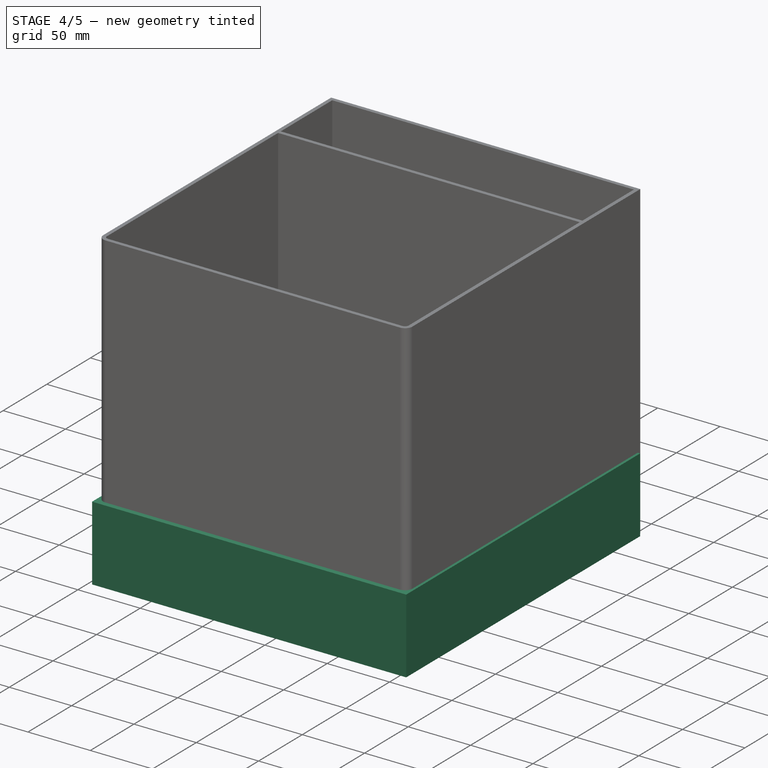
[diagram: stage 4 of 5 — iso view after this stage's code; geometry added in this stage tinted green]
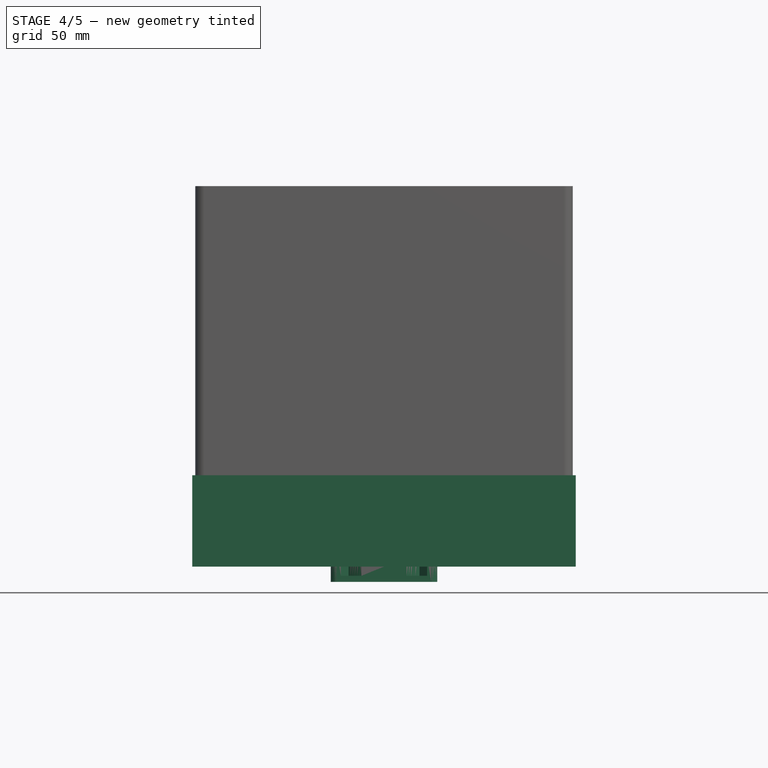
[diagram: stage 4 of 5 — front view after this stage's code; geometry added in this stage tinted green]
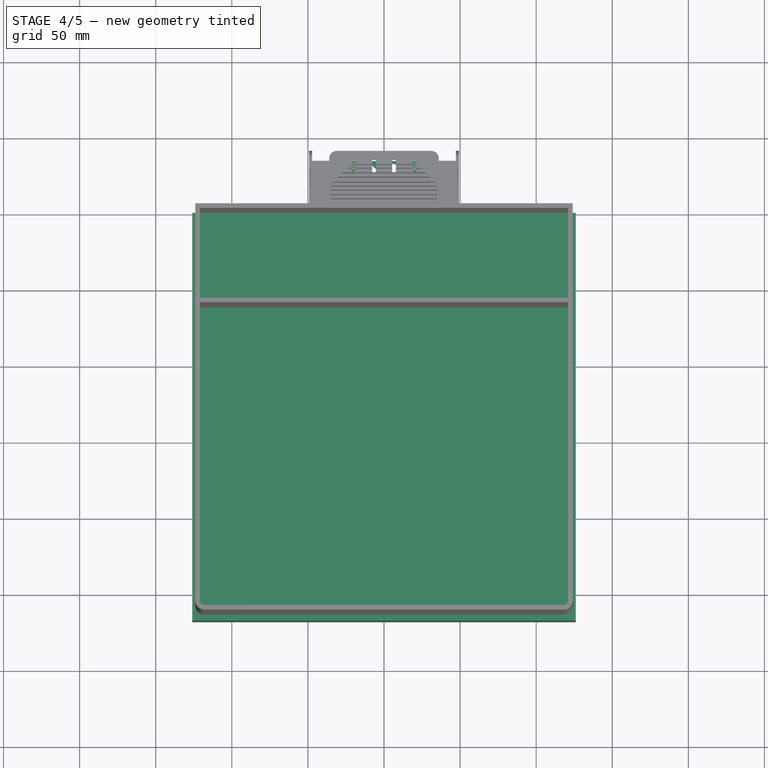
[diagram: stage 4 of 5 — top view after this stage's code; geometry added in this stage tinted green]
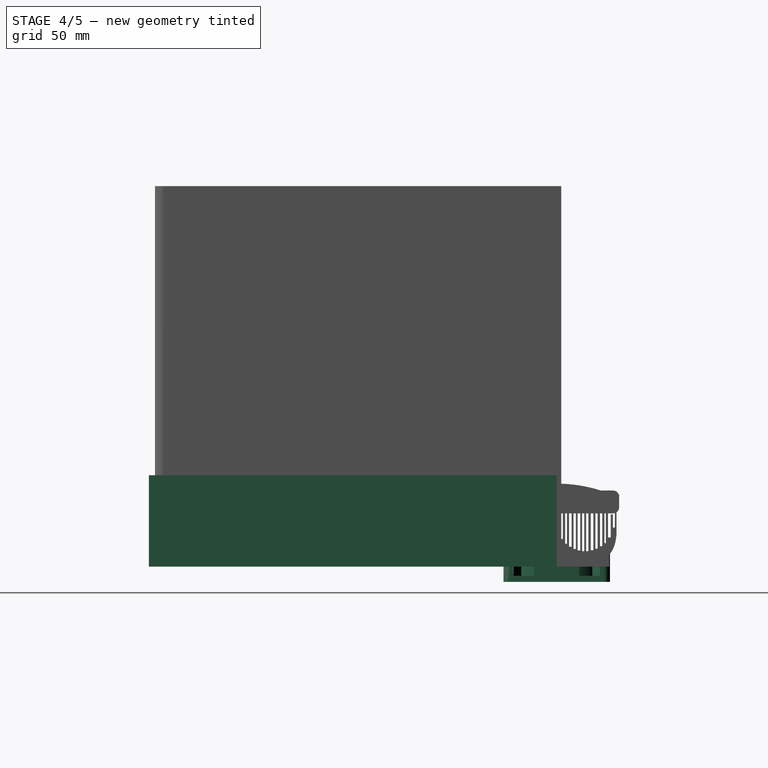
[diagram: stage 4 of 5 — right view after this stage's code; geometry added in this stage tinted green]
FEATURE [Sketcher::SketchObject] Sketch030
  MapMode = 5
  Support = -> [XY_Plane021]
  sketch-geometry (12):
    g0: LineSegment StartX=-35 StartY=35 StartZ=0 EndX=35 EndY=35 EndZ=0
    g1: LineSegment StartX=35 StartY=35 StartZ=0 EndX=35 EndY=-35 EndZ=0
    g2: LineSegment StartX=35 StartY=-35 StartZ=0 EndX=-35 EndY=-35 EndZ=0
    g3: LineSegment StartX=-35 StartY=-35 StartZ=0 EndX=-35 EndY=35 EndZ=0
    g4: LineSegment [constr] StartX=-31 StartY=31 StartZ=0 EndX=31 EndY=31 EndZ=0
    g5: LineSegment [constr] StartX=31 StartY=31 StartZ=0 EndX=31 EndY=-31 EndZ=0
    g6: LineSegment [constr] StartX=31 StartY=-31 StartZ=0 EndX=-31 EndY=-31 EndZ=0
    g7: LineSegment [constr] StartX=-31 StartY=-31 StartZ=0 EndX=-31 EndY=31 EndZ=0
    g8: Circle CenterX=-31 CenterY=31 CenterZ=0 NormalX=0 NormalY=0 NormalZ=1 AngleXU=0 Radius=2.1
    g9: Circle CenterX=31 CenterY=31 CenterZ=0 NormalX=0 NormalY=0 NormalZ=1 AngleXU=0 Radius=2.1
    g10: Circle CenterX=31 CenterY=-31 CenterZ=0 NormalX=0 NormalY=0 NormalZ=1 AngleXU=0 Radius=2.1
    g11: Circle CenterX=-31 CenterY=-31 CenterZ=0 NormalX=0 NormalY=0 NormalZ=1 AngleXU=0 Radius=2.1
  constraints (32):
    c: Coincident(g0,g1)
    c: Coincident(g1,g2)
    c: Coincident(g2,g3)
    c: Coincident(g3,g0)
    c: Horizontal(g0)
    c: Horizontal(g2)
    c: Vertical(g1)
    c: Vertical(g3)
    c: Symmetric(g0,g0,g-2)
    c: Symmetric(g0,g2,g-1)
    c: Equal(g0,g3)
    c: DistanceX(g0,g0) = 70
    c: Coincident(g4,g5)
    c: Coincident(g5,g6)
    c: Coincident(g6,g7)
    c: Coincident(g7,g4)
    c: Horizontal(g4)
    c: Horizontal(g6)
    c: Vertical(g5)
    c: Vertical(g7)
    c: Symmetric(g4,g4,g-2)
    c: Symmetric(g4,g5,g-1)
    c: Equal(g5,g4)
    c: DistanceX(g4,g4) = 62
    c: Coincident(g9,g4)
    c: Coincident(g10,g5)
    c: Coincident(g11,g6)
    c: Equal(g11,g10)
    c: Equal(g10,g9)
    c: Equal(g9,g8)
    c: Radius(g8) = 2.1
    c: Coincident(g8,g4)
FEATURE [PartDesign::Pad] Pad019
  Length = 20
  Length2 = 100
  Midplane = true
  Profile = -> Sketch030
  Refine = true
  Type = 0
FEATURE [Sketcher::SketchObject] Sketch029
  MapMode = 5
  Placement = pos=(0,0,10) rot=(0,0,1;0rad)
  Support = -> [Pad019]
  sketch-geometry (15):
    g0: ArcOfCircle CenterX=0 CenterY=0 CenterZ=0 NormalX=0 NormalY=0 NormalZ=1 AngleXU=0 Radius=34 StartAngle=1.83039 EndAngle=3.29
    g1: Circle [constr] CenterX=6.68564 CenterY=14.5362 CenterZ=0 NormalX=0 NormalY=0 NormalZ=1 AngleXU=0 Radius=3
    g2: Circle [constr] CenterX=-9.20132 CenterY=21.7061 CenterZ=0 NormalX=0 NormalY=0 NormalZ=1 AngleXU=0 Radius=3
    g3: Circle [constr] CenterX=-33.6263 CenterY=-5.02742 CenterZ=0 NormalX=0 NormalY=0 NormalZ=1 AngleXU=0 Radius=3
    g4: BSplineCurve PolesCount=3 KnotsCount=2 Degree=2 IsPeriodic=0
    g5: GeomPoint [constr] X=6.68564 Y=14.5362 Z=0
    g6: GeomPoint [constr] X=-33.6263 Y=-5.02742 Z=0
    g7: Circle [constr] CenterX=6.68564 CenterY=14.5362 CenterZ=0 NormalX=0 NormalY=0 NormalZ=1 AngleXU=0 Radius=2
    g8: Circle [constr] CenterX=-1.35387 CenterY=27.4951 CenterZ=0 NormalX=0 NormalY=0 NormalZ=1 AngleXU=0 Radius=2
    g9: Circle [constr] CenterX=-8.72748 CenterY=32.8608 CenterZ=0 NormalX=0 NormalY=0 NormalZ=1 AngleXU=0 Radius=2
    g10: BSplineCurve PolesCount=3 KnotsCount=2 Degree=2 IsPeriodic=0
    g11: GeomPoint [constr] X=6.68564 Y=14.5362 Z=0
    g12: GeomPoint [constr] X=-8.72748 Y=32.8608 Z=0
    g13: Circle [constr] CenterX=0 CenterY=0 CenterZ=0 NormalX=0 NormalY=0 NormalZ=1 AngleXU=0 Radius=34
    g14: Circle [constr] CenterX=0 CenterY=0 CenterZ=0 NormalX=0 NormalY=0 NormalZ=1 AngleXU=0 Radius=16
  constraints (27):
    c: Coincident(g0,g-1)
    c: Radius(g0) = 34
    c: Radius(g1) = 3
    c: Equal(g1,g2)
    c: Equal(g1,g3)
    c: InternalAlignment(g1,g4)
    c: InternalAlignment(g2,g4)
    c: InternalAlignment(g3,g4)
    c: InternalAlignment(g5,g4)
    c: InternalAlignment(g6,g4)
    c: Radius(g7) = 2
    c: Equal(g7,g8)
    c: Equal(g7,g9)
    c: InternalAlignment(g7,g10)
    c: InternalAlignment(g8,g10)
    c: InternalAlignment(g9,g10)
    c: InternalAlignment(g11,g10)
    c: InternalAlignment(g12,g10)
    c: Coincident(g0,g9)
    c: Coincident(g0,g3)
    c: Coincident(g7,g1)
    c: PointOnObject(g13,g-1)
    c: Coincident(g14,g13)
    c: Coincident(g13,g-1)
    c: Radius(g14) = 16
    c: Radius(g13) = 34
    c: PointOnObject(g1,g14)
FEATURE [PartDesign::Pocket] Pocket014
  BaseFeature = -> Pad019
  Length = 5
  Length2 = 100
  Profile = -> Sketch029
  Refine = true
  Type = 1
FEATURE [PartDesign::PolarPattern] PolarPattern002
  Angle = 360
  Axis = -> Sketch029 [N_Axis]
  BaseFeature = -> Pocket014
  Occurrences = 4
  Originals = -> [Pocket014]
  Refine = true
FEATURE [PartDesign::Fillet] Fillet011
  Base = -> PolarPattern002 [Edge2,Edge1,Edge8,Edge5]
  BaseFeature = -> PolarPattern002
  Radius = 4
FEATURE [Sketcher::SketchObject] Sketch032
  MapMode = 5
  Placement = pos=(0,0,10) rot=(0,0,1;0rad)
  Support = -> [Fillet011]
  sketch-geometry (1):
    g0: Circle CenterX=0 CenterY=0 CenterZ=0 NormalX=0 NormalY=0 NormalZ=1 AngleXU=0 Radius=34
  constraints (2):
    c: Coincident(g0,g-1)
    c: Radius(g0) = 34
FEATURE [PartDesign::Pocket] Pocket018
  BaseFeature = -> Fillet011
  Length = 18.5
  Length2 = 100
  Profile = -> Sketch032
  Refine = true
  Type = 0
FEATURE [Sketcher::SketchObject] Sketch033
  MapMode = 5
  Support = -> [XY_Plane021]
  sketch-geometry (6):
    g0: ArcOfCircle CenterX=0 CenterY=0 CenterZ=0 NormalX=0 NormalY=0 NormalZ=1 AngleXU=0 Radius=38 StartAngle=0.909951 EndAngle=2.23164
    g1: LineSegment StartX=-23.3238 StartY=30 StartZ=0 EndX=-29 EndY=35.6762 EndZ=0
    g2: LineSegment StartX=-29 StartY=35.6762 StartZ=0 EndX=-29 EndY=47.6762 EndZ=0
    g3: LineSegment StartX=-29 StartY=47.6762 StartZ=0 EndX=29 EndY=47.6762 EndZ=0
    g4: LineSegment StartX=29 StartY=47.6762 StartZ=0 EndX=29 EndY=35.6762 EndZ=0
    g5: LineSegment StartX=29 StartY=35.6762 StartZ=0 EndX=23.3238 EndY=30 EndZ=0
  constraints (18):
    c: Coincident(g0,g-1)
    c: Coincident(g1,g2)
    c: Vertical(g2)
    c: Coincident(g2,g3)
    c: Horizontal(g3)
    c: Coincident(g3,g4)
    c: Vertical(g4)
    c: Coincident(g4,g5)
    c: Coincident(g0,g5)
    c: Coincident(g0,g1)
    c: Radius(g0) = 38
    c: Symmetric(g0,g0,g-2)
    c: Angle(g1,g2) = 2.35619
    c: Equal(g4,g2)
    c: Symmetric(g3,g2,g-2)
    c: DistanceX(g3,g3) = 58
    c: DistanceY(g2,g2) = 12
    c: DistanceY(g-1,g0) = 30
FEATURE [PartDesign::Pocket] Pocket017
  BaseFeature = -> Pocket018
  Length = 12
  Length2 = 100
  Midplane = true
  Profile = -> Sketch033
  Refine = true
  Type = 0
FEATURE [PartDesign::PolarPattern] PolarPattern003
  Angle = 360
  Axis = -> Sketch033 [N_Axis]
  BaseFeature = -> Pocket017
  Occurrences = 4
  Originals = -> [Pocket017]
  Refine = true
FEATURE [PartDesign::Fillet] Fillet009
  Base = -> Fillet010 [Edge32,Edge26,Edge40,Edge42,Edge181,Edge183,Edge184,Edge182,Edge192,Edge194,Edge208,Edge210,Edge224,Edge226,Edge240,Edge242,Edge256,Edge258,Edge272,Edge274,Edge1144,Edge1143,Edge1140,Edge1139,Edge1136,Edge1135]
  BaseFeature = -> Fillet010
  Radius = 0.4
FEATURE [PartDesign::Body] Body015
  Group = -> [DatumPlane002,Sketch039,Pad018,Sketch035,Pocket015,Sketch036,Pad017,Sketch028,Pocket021,Sketch031,Pad016,Mirrored010,Fillet008,Fillet012,Draft001]
  Origin = -> Origin027
  Placement = pos=(0,-190,85) rot=(0,0,1;0rad)
  Tip = -> Draft001
FEATURE [App::Part] Part015  label="Soporte"
  Group = -> [Body015]
  License = CC BY 3.0
  LicenseURL = http://creativecommons.org/licenses/by/3.0/
  Origin = -> Origin025
  Placement = pos=(0,0,250) rot=(1,0,0;0.314159rad)
FEATURE [Sketcher::SketchObject] Sketch040
  MapMode = 5
  Support = -> [XY_Plane030]
  expr: Constraints[11] = Tapa.profundidad
  expr: Constraints[10] = Tapa.frente
  sketch-geometry (4):
    g0: LineSegment StartX=-126 StartY=0 StartZ=0 EndX=126 EndY=0 EndZ=0
    g1: LineSegment StartX=126 StartY=0 StartZ=0 EndX=126 EndY=-268 EndZ=0
    g2: LineSegment StartX=126 StartY=-268 StartZ=0 EndX=-126 EndY=-268 EndZ=0
    g3: LineSegment StartX=-126 StartY=-268 StartZ=0 EndX=-126 EndY=0 EndZ=0
  constraints (12):
    c: Coincident(g0,g1)
    c: Coincident(g1,g2)
    c: Coincident(g2,g3)
    c: Coincident(g3,g0)
    c: Horizontal(g0)
    c: Horizontal(g2)
    c: Vertical(g1)
    c: Vertical(g3)
    c: PointOnObject(g0,g-1)
    c: Symmetric(g0,g0,g-1)
    c: DistanceX(g0,g0) = 252
    c: DistanceY(g3,g3) = 268
FEATURE [PartDesign::Pad] Pad011
  Length = 60
  Length2 = 100
  Profile = -> Sketch040
  Refine = true
  Type = 0
  expr: Length = Tapa.alto
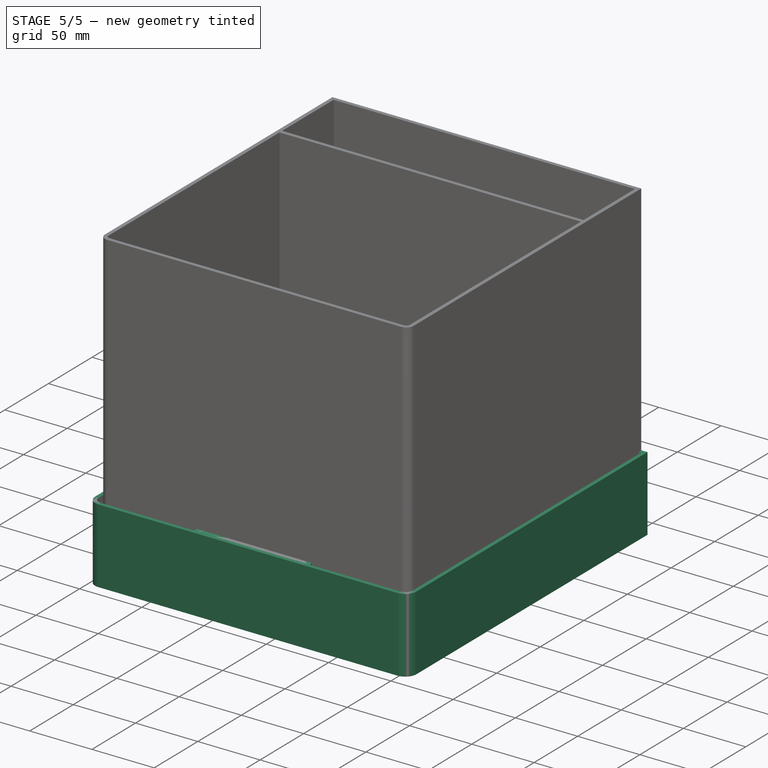
[diagram: stage 5 of 5 — iso view after this stage's code; geometry added in this stage tinted green]
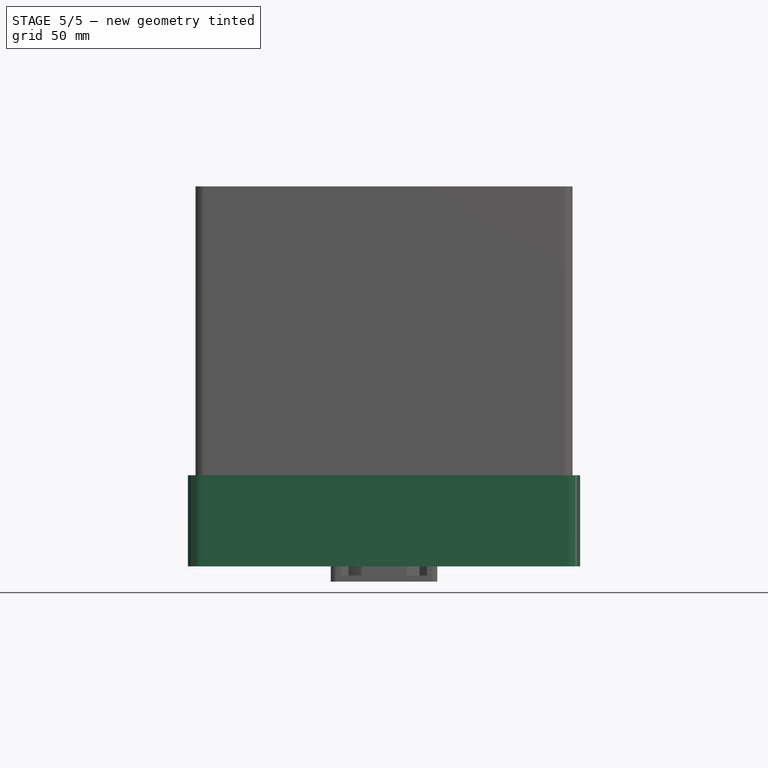
[diagram: stage 5 of 5 — front view after this stage's code; geometry added in this stage tinted green]
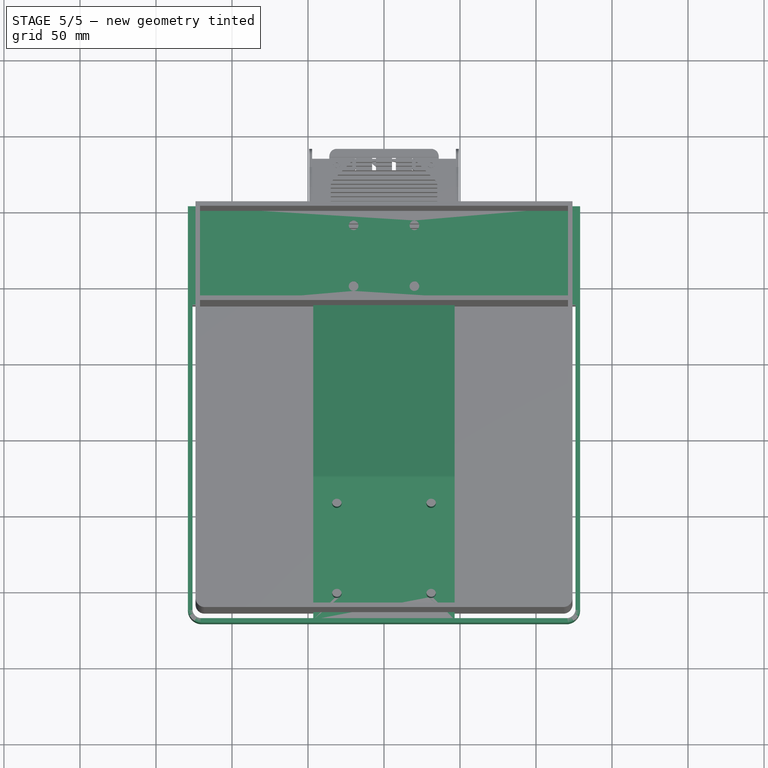
[diagram: stage 5 of 5 — top view after this stage's code; geometry added in this stage tinted green]
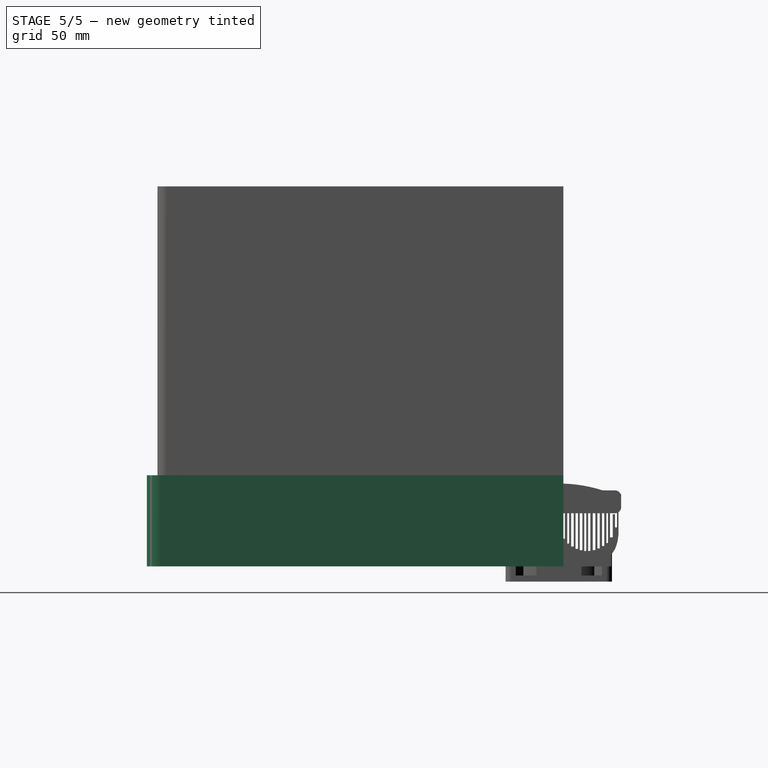
[diagram: stage 5 of 5 — right view after this stage's code; geometry added in this stage tinted green]
FEATURE [PartDesign::Pad] Pad014
  Length = 3
  Length2 = 100
  Placement = pos=(0,0,55) rot=(0,0,1;0rad)
  Profile = -> Sketch022
  Refine = true
  Type = 0
  expr: Length = Tapa.espesoracrilico
FEATURE [Sketcher::SketchObject] Sketch023
  ExternalGeometry = -> [Pad014]
  MapMode = 5
  Placement = pos=(0,0,58) rot=(0,0,1;0rad)
  Support = -> [Pad014]
  expr: Constraints[10] = Spreadsheet.barrenosventilador
  sketch-geometry (10):
    g0: LineSegment [constr] StartX=-20 StartY=-9.5 StartZ=0 EndX=20 EndY=-9.5 EndZ=0
    g1: LineSegment [constr] StartX=20 StartY=-9.5 StartZ=0 EndX=20 EndY=-49.5 EndZ=0
    g2: LineSegment [constr] StartX=20 StartY=-49.5 StartZ=0 EndX=-20 EndY=-49.5 EndZ=0
    g3: LineSegment [constr] StartX=-20 StartY=-49.5 StartZ=0 EndX=-20 EndY=-9.5 EndZ=0
    g4: LineSegment [constr] StartX=0 StartY=3 StartZ=0 EndX=0 EndY=-9.5 EndZ=0
    g5: LineSegment [constr] StartX=0 StartY=-49.5 StartZ=0 EndX=0 EndY=-62 EndZ=0
    g6: Circle CenterX=-20 CenterY=-9.5 CenterZ=0 NormalX=0 NormalY=0 NormalZ=1 AngleXU=0 Radius=3.175
    g7: Circle CenterX=20 CenterY=-9.5 CenterZ=0 NormalX=0 NormalY=0 NormalZ=1 AngleXU=0 Radius=3.175
    g8: Circle CenterX=20 CenterY=-49.5 CenterZ=0 NormalX=0 NormalY=0 NormalZ=1 AngleXU=0 Radius=3.175
    g9: Circle CenterX=-20 CenterY=-49.5 CenterZ=0 NormalX=0 NormalY=0 NormalZ=1 AngleXU=0 Radius=3.175
  constraints (28):
    c: Coincident(g0,g1)
    c: Coincident(g1,g2)
    c: Coincident(g2,g3)
    c: Coincident(g3,g0)
    c: Horizontal(g0)
    c: Horizontal(g2)
    c: Vertical(g1)
    c: Vertical(g3)
    c: Symmetric(g0,g0,g-2)
    c: Equal(g1,g0)
    c: DistanceX(g0,g0) = 40
    c: PointOnObject(g4,g-4)
    c: Vertical(g4)
    c: PointOnObject(g5,g2)
    c: PointOnObject(g5,g-3)
    c: Vertical(g5)
    c: Equal(g5,g4)
    c: PointOnObject(g4,g0)
    c: PointOnObject(g4,g-2)
    c: PointOnObject(g5,g-2)
    c: Coincident(g6,g0)
    c: Coincident(g7,g0)
    c: Coincident(g8,g1)
    c: Coincident(g9,g2)
    c: Equal(g9,g6)
    c: Equal(g6,g7)
    c: Equal(g7,g8)
    c: Radius(g7) = 3.175
FEATURE [PartDesign::Pocket] Pocket019
  BaseFeature = -> Pad014
  Length = 4
  Length2 = 100
  Placement = pos=(0,0,55) rot=(0,0,1;0rad)
  Profile = -> Sketch023
  Refine = true
  Type = 0
  expr: Length = Tapa.espesoracrilico + 1
FEATURE [PartDesign::Fillet] Fillet013
  Base = -> Pad011 [Edge5,Edge8]
  BaseFeature = -> Pad011
  Radius = 6
  expr: Radius = Acuario.radio
FEATURE [PartDesign::Thickness] Thickness001  label="Grosor Acrilico tapa"
  Base = -> Fillet013 [Face5,Face2,Face4]
  BaseFeature = -> Fillet013
  Join = 0
  Mode = 0
  Value = 3
FEATURE [PartDesign::Body] Body008
  Group = -> [Sketch040,Pad011,Fillet013,Thickness001]
  Origin = -> Origin031
  Tip = -> Thickness001
FEATURE [App::Part] Part010  label="00 Soporte Principal"
  Group = -> [Body008]
  License = CC BY 3.0
  LicenseURL = http://creativecommons.org/licenses/by/3.0/
  Origin = -> Origin030
  Placement = pos=(0,3,245) rot=(0,0,1;0rad)
  expr: Placement.Base.y = Acuario.espesor
  expr: Placement.Base.z = Acuario.alto - 5
FEATURE [Sketcher::SketchObject] Sketch041
  MapMode = 5
  Placement = pos=(0,0,0) rot=(0.57735,0.57735,0.57735;2.0944rad)
  Support = -> [YZ_Plane017]
  expr: Constraints[10] = Tapa.alto
  expr: Constraints[9] = Tapa.espesoracrilico
  sketch-geometry (4):
    g0: LineSegment StartX=0 StartY=0 StartZ=0 EndX=3 EndY=0 EndZ=0
    g1: LineSegment StartX=3 StartY=0 StartZ=0 EndX=3 EndY=60 EndZ=0
    g2: LineSegment StartX=3 StartY=60 StartZ=0 EndX=0 EndY=60 EndZ=0
    g3: LineSegment StartX=0 StartY=60 StartZ=0 EndX=0 EndY=0 EndZ=0
  constraints (11):
    c: Coincident(g0,g1)
    c: Coincident(g1,g2)
    c: Coincident(g2,g3)
    c: Coincident(g3,g0)
    c: Horizontal(g0)
    c: Horizontal(g2)
    c: Vertical(g1)
    c: Vertical(g3)
    c: Coincident(g0,g-1)
    c: DistanceX(g2,g2) = 3
    c: DistanceY(g1,g1) = 60
FEATURE [PartDesign::Pad] Pad013
  Length = 258
  Length2 = 100
  Midplane = true
  Placement = pos=(0,0,0) rot=(0.57735,0.57735,0.57735;2.0944rad)
  Profile = -> Sketch041
  Refine = true
  Type = 0
  expr: Length = Tapa.frente + Tapa.espesoracrilico * 2
FEATURE [PartDesign::Body] Body012
  Group = -> [Sketch041,Pad013]
  Origin = -> Origin019
  Tip = -> Pad013
FEATURE [App::Part] Part009  label="01 Tapa trasera"
  Group = -> [Body012]
  License = CC BY 3.0
  LicenseURL = http://creativecommons.org/licenses/by/3.0/
  Origin = -> Origin017
  Placement = pos=(0,3,245) rot=(0,0,1;0rad)
  expr: Placement.Base.y = Acuario.espesor
  expr: Placement.Base.z = Acuario.alto - 5
FEATURE [Sketcher::SketchObject] Sketch042
  MapMode = 5
  Placement = pos=(0,0,0) rot=(0.57735,0.57735,0.57735;2.0944rad)
  Support = -> [YZ_Plane030]
  expr: Constraints[11] = Tapa.anchofiltro
  expr: Constraints[10] = Tapa.alto - 5
  expr: Constraints[9] = Tapa.espesoracrilico
  sketch-geometry (4):
    g0: LineSegment StartX=-59 StartY=0 StartZ=0 EndX=-62 EndY=0 EndZ=0
    g1: LineSegment StartX=-62 StartY=0 StartZ=0 EndX=-62 EndY=55 EndZ=0
    g2: LineSegment StartX=-62 StartY=55 StartZ=0 EndX=-59 EndY=55 EndZ=0
    g3: LineSegment StartX=-59 StartY=55 StartZ=0 EndX=-59 EndY=0 EndZ=0
  constraints (12):
    c: Coincident(g0,g1)
    c: Coincident(g1,g2)
    c: Coincident(g2,g3)
    c: Coincident(g3,g0)
    c: Horizontal(g0)
    c: Horizontal(g2)
    c: Vertical(g1)
    c: Vertical(g3)
    c: PointOnObject(g0,g-1)
    c: DistanceX(g2,g2) = 3
    c: DistanceY(g3,g3) = 55
    c: DistanceX(g0,g-1) = 59
FEATURE [PartDesign::Pad] Pad012
  Length = 252
  Length2 = 100
  Midplane = true
  Placement = pos=(0,0,0) rot=(0.57735,0.57735,0.57735;2.0944rad)
  Profile = -> Sketch042
  Refine = true
  Type = 0
  expr: Length = Tapa.frente
FEATURE [PartDesign::Body] Body011
  Group = -> [Sketch042,Pad012]
  Origin = -> Origin018
  Placement = pos=(0,0,3) rot=(0,0,1;0rad)
  Tip = -> Pad012
FEATURE [App::Part] Part012  label="02 Tapa en medio"
  Group = -> [Body011]
  License = CC BY 3.0
  LicenseURL = http://creativecommons.org/licenses/by/3.0/
  Origin = -> Origin016
  Placement = pos=(0,3,247) rot=(0,0,1;0rad)
  expr: Placement.Base.y = Acuario.espesor
  expr: Placement.Base.z = Acuario.alto - 3
FEATURE [Sketcher::SketchObject] Sketch043
  MapMode = 5
  Placement = pos=(0,0,0) rot=(0.57735,0.57735,0.57735;2.0944rad)
  Support = -> [YZ_Plane029]
  expr: Constraints[28] = Spreadsheet.largodisipador
  expr: Constraints[39] = Spreadsheet.altoacuario
  expr: Constraints[37] = Spreadsheet.largoacuario - Spreadsheet.anchofiltro - Spreadsheet.espesoracrilico
  expr: Constraints[33] = Spreadsheet.anchofiltro + Spreadsheet.espesoracrilico
  expr: Constraints[27] = Spreadsheet.espesoracrilico
  sketch-geometry (14):
    g0: LineSegment StartX=-268 StartY=55 StartZ=0 EndX=-268.929 EndY=57.8527 EndZ=0
    g1: LineSegment StartX=-268.929 StartY=57.8527 StartZ=0 EndX=-175.74 EndY=88.1839 EndZ=0
    g2: LineSegment StartX=-175.74 StartY=88.1839 StartZ=0 EndX=-61.233 EndY=57.9003 EndZ=0
    g3: LineSegment StartX=-61.233 StartY=57.9003 StartZ=0 EndX=-62 EndY=55 EndZ=0
    g4: LineSegment StartX=-62 StartY=55 StartZ=0 EndX=-175.564 EndY=85.0342 EndZ=0
    g5: LineSegment StartX=-175.564 StartY=85.0342 StartZ=0 EndX=-268 EndY=55 EndZ=0
    g6: LineSegment [constr] StartX=-176.507 StartY=87.9344 StartZ=0 EndX=-175.564 EndY=85.0342 EndZ=0
    g7: LineSegment [constr] StartX=-175.564 StartY=85.0342 StartZ=0 EndX=-174.797 EndY=87.9344 EndZ=0
    g8: LineSegment [constr] StartX=-174.797 StartY=87.9344 StartZ=0 EndX=-175.74 EndY=87.9344 EndZ=0
    g9: LineSegment [constr] StartX=-175.74 StartY=87.9344 StartZ=0 EndX=-175.74 EndY=88.1839 EndZ=0
    g10: LineSegment [constr] StartX=-175.74 StartY=87.9344 StartZ=0 EndX=-176.507 EndY=87.9344 EndZ=0
    g11: LineSegment [constr] StartX=0 StartY=0 StartZ=0 EndX=0 EndY=3 EndZ=0
    g12: LineSegment [constr] StartX=0 StartY=0 StartZ=0 EndX=0 EndY=-98 EndZ=0
    g13: LineSegment [constr] StartX=-268 StartY=55 StartZ=0 EndX=-62 EndY=55 EndZ=0
  constraints (40):
    c: Coincident(g0,g1)
    c: Coincident(g1,g2)
    c: Coincident(g2,g3)
    c: Coincident(g3,g4)
    c: Coincident(g4,g5)
    c: Coincident(g5,g0)
    c: Perpendicular(g0,g1)
    c: Perpendicular(g4,g3)
    c: Perpendicular(g3,g2)
    c: PointOnObject(g6,g1)
    c: Coincident(g6,g4)
    c: Coincident(g7,g4)
    c: PointOnObject(g7,g2)
    c: Coincident(g8,g7)
    c: Horizontal(g8)
    c: Coincident(g9,g8)
    c: Coincident(g9,g1)
    c: Coincident(g10,g8)
    c: Coincident(g10,g6)
    c: Perpendicular(g5,g6)
    c: Perpendicular(g4,g7)
    c: Parallel(g8,g10)
    c: Perpendicular(g9,g8)
    c: Coincident(g11,g-1)
    c: PointOnObject(g11,g-2)
    c: Coincident(g12,g-1)
    c: PointOnObject(g12,g-2)
    c: DistanceY(g11,g11) = 3
    c: DistanceY(g12,g12) = 98
    c: Equal(g12,g1)
    c: Equal(g0,g3)
    c: Equal(g3,g11)
    c: Horizontal(g3,g0)
    c: DistanceX(g3,g-1) = 62
    c: Coincident(g13,g0)
    c: Horizontal(g13)
    c: Angle(g13,g5) = 0.314159
    c: DistanceX(g13,g13) = 206
    c: Coincident(g3,g13)
    c: DistanceY(g-1,g3) = 55
FEATURE [PartDesign::Pad] Pad015
  Length = 93
  Length2 = 100
  Midplane = true
  Placement = pos=(0,0,0) rot=(0.57735,0.57735,0.57735;2.0944rad)
  Profile = -> Sketch043
  Refine = true
  Type = 0
  expr: Length = Spreadsheet.anchodisipador
FEATURE [Sketcher::SketchObject] Sketch024
  ExternalGeometry = -> [Pad015]
  MapMode = 5
  Placement = pos=(-2e-11,-42.7873,131.458) rot=(0.154798,0.154798,-0.975744;1.59535rad)
  Support = -> [Pad015]
  expr: Constraints[13] = Spreadsheet.barrenosdisipador
  sketch-geometry (10):
    g0: LineSegment [constr] StartX=157.818 StartY=-31 StartZ=0 EndX=219.818 EndY=-31 EndZ=0
    g1: LineSegment [constr] StartX=219.818 StartY=-31 StartZ=0 EndX=219.818 EndY=31 EndZ=0
    g2: LineSegment [constr] StartX=219.818 StartY=31 StartZ=0 EndX=157.818 EndY=31 EndZ=0
    g3: LineSegment [constr] StartX=157.818 StartY=31 StartZ=0 EndX=157.818 EndY=-31 EndZ=0
    g4: LineSegment [constr] StartX=139.818 StartY=46.5 StartZ=0 EndX=157.818 EndY=31 EndZ=0
    g5: LineSegment [constr] StartX=219.818 StartY=-31 StartZ=0 EndX=237.818 EndY=-46.5 EndZ=0
    g6: Circle CenterX=157.818 CenterY=-31 CenterZ=0 NormalX=0 NormalY=0 NormalZ=1 AngleXU=0 Radius=3.175
    g7: Circle CenterX=157.818 CenterY=31 CenterZ=0 NormalX=0 NormalY=0 NormalZ=1 AngleXU=0 Radius=3.175
    g8: Circle CenterX=219.818 CenterY=31 CenterZ=0 NormalX=0 NormalY=0 NormalZ=1 AngleXU=0 Radius=3.175
    g9: Circle CenterX=219.818 CenterY=-31 CenterZ=0 NormalX=0 NormalY=0 NormalZ=1 AngleXU=0 Radius=3.175
  constraints (24):
    c: Coincident(g0,g1)
    c: Coincident(g1,g2)
    c: Coincident(g2,g3)
    c: Coincident(g3,g0)
    c: Horizontal(g0)
    c: Horizontal(g2)
    c: Vertical(g1)
    c: Vertical(g3)
    c: Coincident(g4,g-3)
    c: Coincident(g5,g0)
    c: Coincident(g5,g-4)
    c: Equal(g5,g4)
    c: Parallel(g4,g5)
    c: DistanceX(g2,g2) = 62
    c: Equal(g3,g2)
    c: Coincident(g4,g2)
    c: Coincident(g7,g2)
    c: Coincident(g8,g1)
    c: Coincident(g9,g0)
    c: Equal(g9,g6)
    c: Equal(g6,g7)
    c: Equal(g7,g8)
    c: Radius(g9) = 3.175
    c: Coincident(g6,g0)
FEATURE [PartDesign::Pocket] Pocket016
  BaseFeature = -> Pad015
  Length = 4
  Length2 = 100
  Placement = pos=(0,0,0) rot=(0.57735,0.57735,0.57735;2.0944rad)
  Profile = -> Sketch024
  Refine = true
  Type = 0
  expr: Length = Spreadsheet.espesoracrilico + 1
FEATURE [PartDesign::Fillet] Fillet007
  Base = -> Pocket016 [Edge14,Edge5]
  BaseFeature = -> Pocket016
  Placement = pos=(0,0,0) rot=(0.57735,0.57735,0.57735;2.0944rad)
  Radius = 4
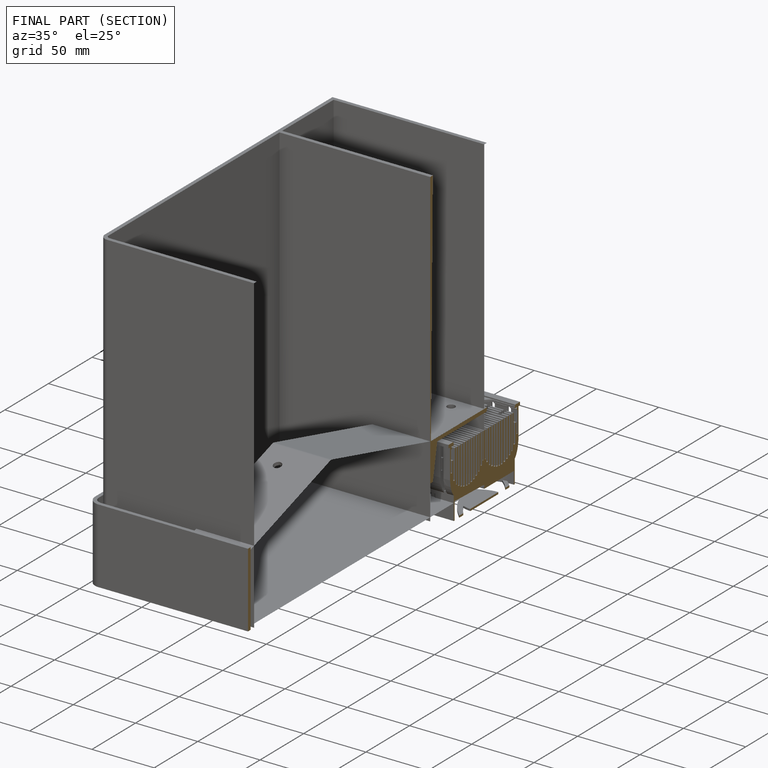
[diagram: finished part — half-section view (interior)]
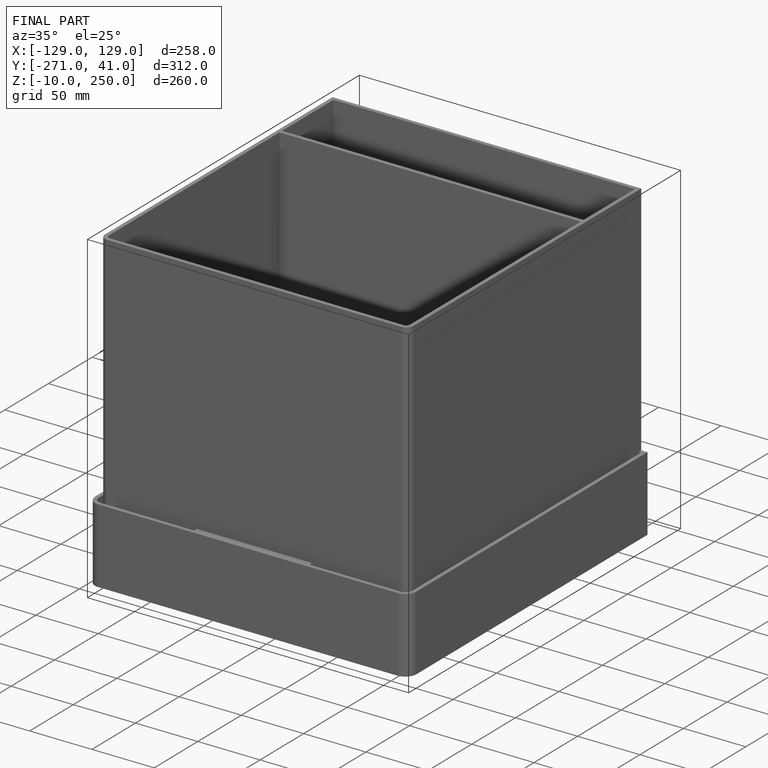
[diagram: finished part — iso view with bounding-box wireframe]
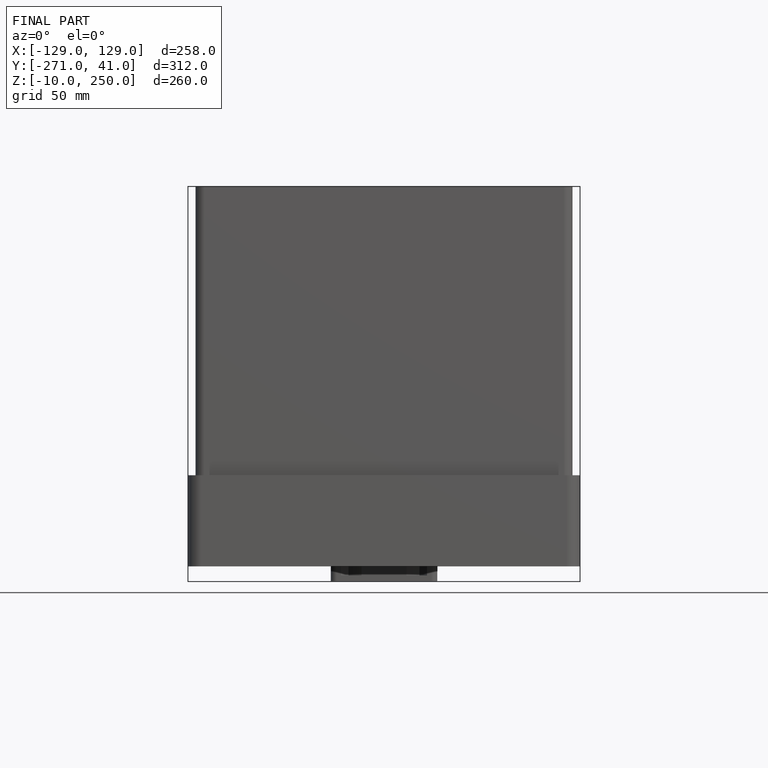
[diagram: finished part — front view with bounding-box wireframe]
